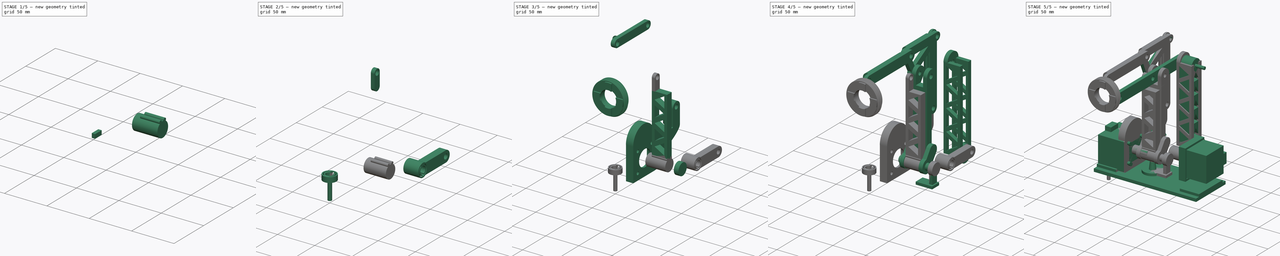
[diagram: build sequence overview — one tinted view per stage of 5, left to right]
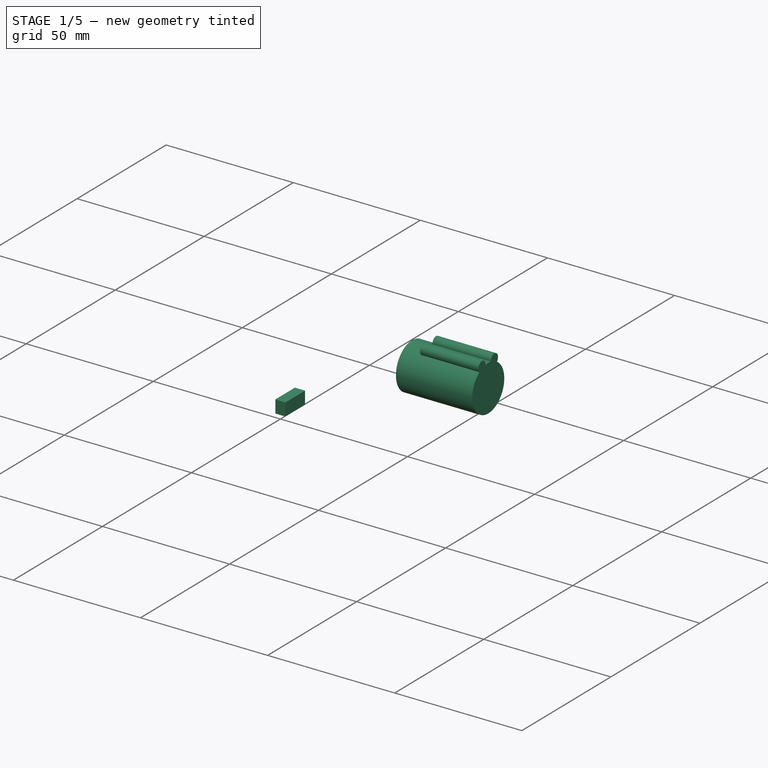
[diagram: stage 1 of 5 — iso view after this stage's code; geometry added in this stage tinted green]
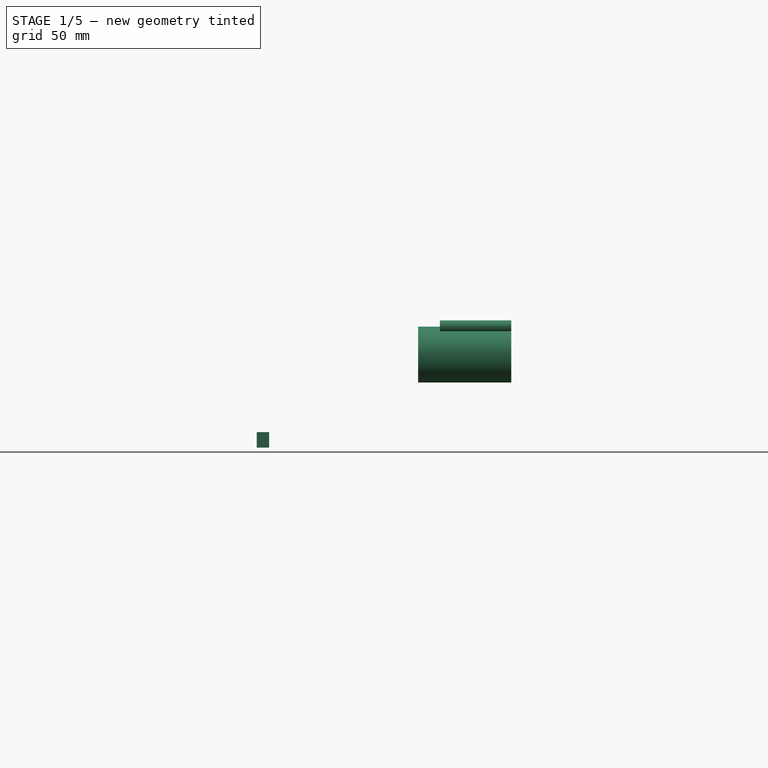
[diagram: stage 1 of 5 — front view after this stage's code; geometry added in this stage tinted green]
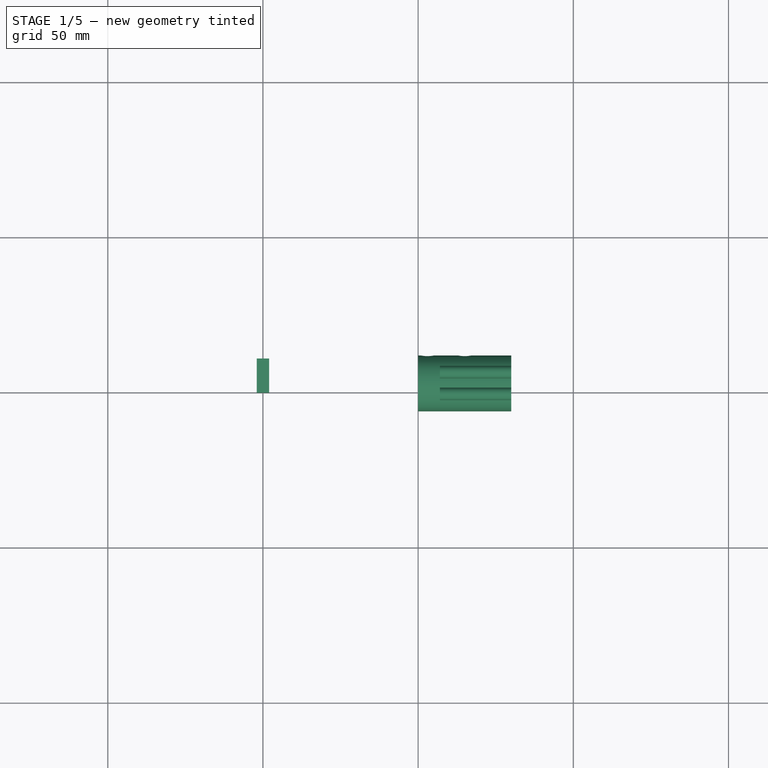
[diagram: stage 1 of 5 — top view after this stage's code; geometry added in this stage tinted green]
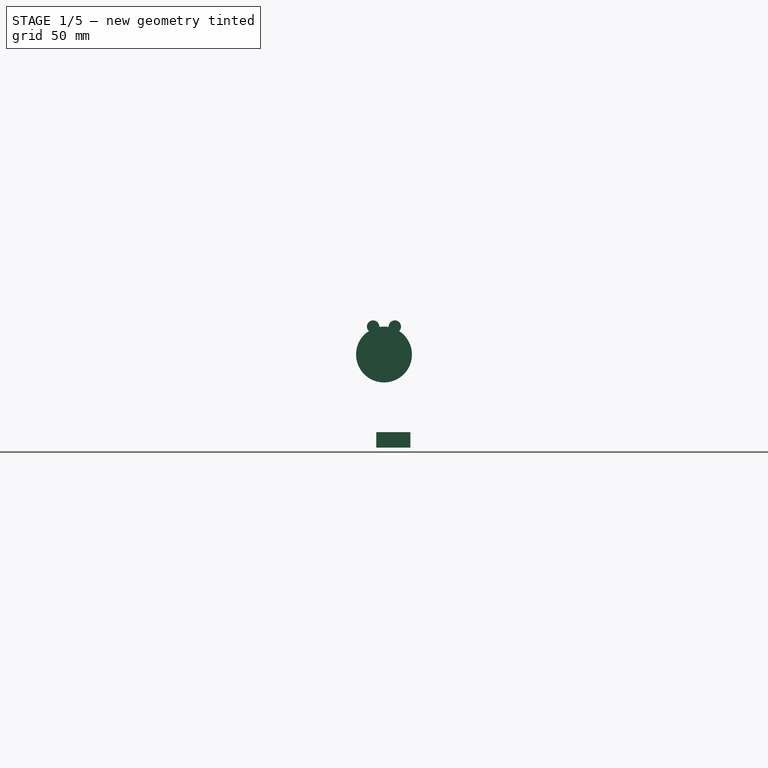
[diagram: stage 1 of 5 — right view after this stage's code; geometry added in this stage tinted green]
FCSTD DOCUMENT  (FreeCAD 0.19R24291 (Git))
Label: my_arm
License: All rights reserved
LicenseURL: http://en.wikipedia.org/wiki/All_rights_reserved
objects: Part::Extrusion×79, Part::MultiFuse×58, Sketcher::SketchObject×47, Part::Cut×38, Part::Feature×32, Part::Cylinder×31, Part::Box×24, App::Link×23, PartDesign::FeatureBase×9, PartDesign::Pad×5, PartDesign::Body×4, Part::Fillet×3, PartDesign::Fillet×2, Part::Cone×1, Part::Compound2×1
note: 340 computed .brp shape members not serialized (recipe doc carries the construction recipe); baked Part::Feature solids carry a one-line shape summary decoded from their .brp

FEATURE [Part::Feature] Face
  shape: bbox 15.96 x 13.57 x 2e-07 mm, 1 faces, 0 solids (baked)
FEATURE [Part::Feature] Face001
  shape: bbox 21.96 x 19.88 x 2e-07 mm, 1 faces, 0 solids (baked)
FEATURE [Part::Feature] Face002
  shape: bbox 25.74 x 23.3 x 2e-07 mm, 1 faces, 0 solids (baked)
FEATURE [Part::Feature] Face003
  shape: bbox 30.39 x 27.95 x 2e-07 mm, 1 faces, 0 solids (baked)
FEATURE [Part::Feature] Face004
  shape: bbox 4.4 x 12.1 x 2e-07 mm, 1 faces, 0 solids (baked)
FEATURE [Part::Extrusion] Extrude029  label="Extrude"
  Base = -> Face
  Dir = (0,0,1)
  DirMode = 0
  FaceMakerClass = Part::FaceMakerBullseye
  LengthFwd = 5
  LengthRev = 0
  Solid = false
  Symmetric = false
FEATURE [Part::Extrusion] Extrude030
  Base = -> Face001
  Dir = (0,0,1)
  DirMode = 0
  FaceMakerClass = Part::FaceMakerBullseye
  LengthFwd = 5
  LengthRev = 0
  Solid = false
  Symmetric = false
FEATURE [Part::Extrusion] Extrude031  label="Extrude002"
  Base = -> Face002
  Dir = (0,0,1)
  DirMode = 0
  FaceMakerClass = Part::FaceMakerBullseye
  LengthFwd = 5
  LengthRev = 0
  Solid = false
  Symmetric = false
FEATURE [Part::Extrusion] Extrude032  label="Extrude003"
  Base = -> Face004
  Dir = (0,0,1)
  DirMode = 0
  FaceMakerClass = Part::FaceMakerBullseye
  LengthFwd = 5
  LengthRev = 0
  Solid = false
  Symmetric = false
FEATURE [Part::Extrusion] Extrude033  label="Extrude004"
  Base = -> Face003
  Dir = (0,0,1)
  DirMode = 0
  FaceMakerClass = Part::FaceMakerBullseye
  LengthFwd = 5
  LengthRev = 0
  Solid = false
  Symmetric = false
FEATURE [Part::Cut] Cut016
  Base = -> Extrude030
  Tool = -> Extrude029
FEATURE [Part::Cut] Cut017
  Base = -> Cut016
  Tool = -> Extrude032
FEATURE [Part::Cut] Cut018
  Base = -> Extrude033
  Tool = -> Extrude031
FEATURE [Sketcher::SketchObject] Sketch031  label="Sketch001"
  FullyConstrained = false
  sketch-geometry (4):
    g0: ArcOfCircle CenterX=3e-16 CenterY=0 CenterZ=0 NormalX=0 NormalY=0 NormalZ=1 AngleXU=0 Radius=8.30611 StartAngle=4.22441 EndAngle=5.20037
    g1: ArcOfCircle CenterX=3e-16 CenterY=0 CenterZ=0 NormalX=0 NormalY=0 NormalZ=1 AngleXU=0 Radius=5.37276 StartAngle=4.1609 EndAngle=5.26388
    g2: LineSegment StartX=-2.81509 StartY=-4.57622 StartZ=0 EndX=-3.89424 EndY=-7.33664 EndZ=0
    g3: LineSegment StartX=3.89424 StartY=-7.33664 StartZ=0 EndX=2.81509 EndY=-4.57622 EndZ=0
  constraints (8):
    c: Coincident(g0,g-1)
    c: Symmetric(g0,g0,g-2)
    c: Coincident(g1,g0)
    c: Symmetric(g1,g1,g-2)
    c: Coincident(g2,g1)
    c: Coincident(g2,g0)
    c: Coincident(g3,g0)
    c: Coincident(g3,g1)
FEATURE [Part::Extrusion] Extrude034  label="Extrude005"
  Base = -> Sketch031
  Dir = (0,0,1)
  DirMode = 0
  FaceMakerClass = Part::FaceMakerBullseye
  LengthFwd = 5
  LengthRev = 0
  Solid = true
  Symmetric = false
FEATURE [Part::MultiFuse] Fusion033  label="Fusion"
  Shapes = -> [Cut018,Extrude034]
FEATURE [Part::MultiFuse] Fusion034  label="Fusion001"
  Shapes = -> [Cut018,Extrude034,Fusion033,Cut017]
FEATURE [Part::Extrusion] Extrude035  label="Extrude006"
  Base = -> Face003
  Dir = (0,0,1)
  DirMode = 0
  FaceMakerClass = Part::FaceMakerBullseye
  LengthFwd = 1
  LengthRev = 0
  Solid = false
  Symmetric = false
FEATURE [Part::MultiFuse] Fusion035  label="Fusion002"
  Shapes = -> [Extrude035,Fusion034]
FEATURE [Part::Feature] Face005
  shape: bbox 4.4 x 12.1 x 2e-07 mm, 1 faces, 0 solids (baked)
FEATURE [Part::Feature] Face006
  shape: bbox 21.96 x 19.88 x 2e-07 mm, 1 faces, 0 solids (baked)
FEATURE [Sketcher::SketchObject] Sketch035  label="Sketch006"
  FullyConstrained = false
  sketch-geometry (4):
    g0: ArcOfCircle CenterX=3e-16 CenterY=0 CenterZ=0 NormalX=0 NormalY=0 NormalZ=1 AngleXU=0 Radius=8.30611 StartAngle=4.22441 EndAngle=5.20037
    g1: ArcOfCircle CenterX=3e-16 CenterY=0 CenterZ=0 NormalX=0 NormalY=0 NormalZ=1 AngleXU=0 Radius=5.37276 StartAngle=4.1609 EndAngle=5.26388
    g2: LineSegment StartX=-2.81509 StartY=-4.57622 StartZ=0 EndX=-3.89424 EndY=-7.33664 EndZ=0
    g3: LineSegment StartX=3.89424 StartY=-7.33664 StartZ=0 EndX=2.81509 EndY=-4.57622 EndZ=0
  constraints (8):
    c: Coincident(g0,g-1)
    c: Symmetric(g0,g0,g-2)
    c: Coincident(g1,g0)
    c: Symmetric(g1,g1,g-2)
    c: Coincident(g2,g1)
    c: Coincident(g2,g0)
    c: Coincident(g3,g0)
    c: Coincident(g3,g1)
FEATURE [Part::Extrusion] Extrude041  label="Extrude012"
  Base = -> Face006
  Dir = (0,0,1)
  DirMode = 0
  FaceMakerClass = Part::FaceMakerBullseye
  LengthFwd = 5
  LengthRev = 0
  Solid = false
  Symmetric = false
FEATURE [Part::Feature] Face007
  shape: bbox 25.74 x 23.3 x 2e-07 mm, 1 faces, 0 solids (baked)
FEATURE [Part::Extrusion] Extrude038  label="Extrude009"
  Base = -> Face007
  Dir = (0,0,1)
  DirMode = 0
  FaceMakerClass = Part::FaceMakerBullseye
  LengthFwd = 5
  LengthRev = 0
  Solid = false
  Symmetric = false
FEATURE [Part::Extrusion] Extrude042  label="Extrude013"
  Base = -> Face005
  Dir = (0,0,1)
  DirMode = 0
  FaceMakerClass = Part::FaceMakerBullseye
  LengthFwd = 5
  LengthRev = 0
  Solid = false
  Symmetric = false
FEATURE [Part::Extrusion] Extrude043  label="Extrude014"
  Base = -> Sketch035
  Dir = (0,0,1)
  DirMode = 0
  FaceMakerClass = Part::FaceMakerBullseye
  LengthFwd = 5
  LengthRev = 0
  Solid = true
  Symmetric = false
FEATURE [Part::Feature] Face008
  shape: bbox 15.96 x 13.57 x 2e-07 mm, 1 faces, 0 solids (baked)
FEATURE [Part::Extrusion] Extrude039  label="Extrude010"
  Base = -> Face008
  Dir = (0,0,1)
  DirMode = 0
  FaceMakerClass = Part::FaceMakerBullseye
  LengthFwd = 5
  LengthRev = 0
  Solid = false
  Symmetric = false
FEATURE [Part::Feature] Face009
  shape: bbox 30.39 x 27.95 x 2e-07 mm, 1 faces, 0 solids (baked)
FEATURE [Part::Extrusion] Extrude044  label="Extrude015"
  Base = -> Face009
  Dir = (0,0,1)
  DirMode = 0
  FaceMakerClass = Part::FaceMakerBullseye
  LengthFwd = 5
  LengthRev = 0
  Solid = false
  Symmetric = false
FEATURE [Part::Cut] Cut021  label="Cut005"
  Base = -> Extrude044
  Tool = -> Extrude038
FEATURE [Part::MultiFuse] Fusion040  label="Fusion007"
  Shapes = -> [Cut021,Extrude043]
FEATURE [Part::Extrusion] Extrude045  label="Extrude016"
  Base = -> Face009
  Dir = (0,0,1)
  DirMode = 0
  FaceMakerClass = Part::FaceMakerBullseye
  LengthFwd = 1
  LengthRev = 0
  Solid = false
  Symmetric = false
FEATURE [Part::Cut] Cut022  label="Cut006"
  Base = -> Extrude041
  Tool = -> Extrude039
FEATURE [Part::Cut] Cut023  label="Cut007"
  Base = -> Cut022
  Tool = -> Extrude042
FEATURE [Part::MultiFuse] Fusion037  label="Fusion004"
  Shapes = -> [Cut021,Extrude043,Fusion040,Cut023]
FEATURE [Part::MultiFuse] Fusion038  label="Fusion005"
  Shapes = -> [Extrude045,Fusion037]
FEATURE [PartDesign::FeatureBase] BaseFeature003
  BaseFeature = -> Fusion037
FEATURE [PartDesign::Pad] Pad001
  BaseFeature = -> BaseFeature003
  Direction = (1,1,1)
  Length = 2
  Length2 = 100
  Profile = -> BaseFeature003 [Face14,Face19,Face16,Face21,Face20]
  Type = 0
FEATURE [Sketcher::SketchObject] Sketch034  label="Sketch005"
  ExternalGeometry = -> [Pad001]
  FullyConstrained = true
  Placement = pos=(0,0,0) rot=(1,0,0;1.5708rad)
  sketch-geometry (1):
    g0: Circle CenterX=0 CenterY=4 CenterZ=0 NormalX=0 NormalY=0 NormalZ=1 AngleXU=0 Radius=2
  constraints (3):
    c: PointOnObject(g0,g-2)
    c: Radius(g0) = 2
    c: Distance(g0,g-3) = 3
FEATURE [Part::MultiFuse] Fusion039  label="Fusion006"
  Shapes = -> [Pad001,Fusion038]
FEATURE [Part::Extrusion] Extrude040  label="Extrude011"
  Base = -> Sketch034
  Dir = (0,-1,3e-16)
  DirMode = 2
  FaceMakerClass = Part::FaceMakerBullseye
  LengthFwd = -14
  LengthRev = 0
  Solid = true
  Symmetric = false
FEATURE [Part::Cut] Cut020  label="Cut004"
  Base = -> Fusion039
  Placement = pos=(77,2.5,30) rot=(0,-1,0;1.5708rad)
  Tool = -> Extrude040
FEATURE [PartDesign::FeatureBase] BaseFeature002
  BaseFeature = -> Cut020
  Placement = pos=(0,0,-12) rot=(0,1,0;0rad)
FEATURE [Part::Feature] Face010
  shape: bbox 30.39 x 27.95 x 2e-07 mm, 1 faces, 0 solids (baked)
FEATURE [Part::Extrusion] Extrude046  label="Extrude018"
  Base = -> Face010
  Dir = (0,0,1)
  DirMode = 0
  FaceMakerClass = Part::FaceMakerBullseye
  LengthFwd = 6
  LengthRev = 0
  Solid = false
  Symmetric = false
FEATURE [Sketcher::SketchObject] Sketch036  label="Sketch007"
  FullyConstrained = false
  MapMode = 45
  Placement = pos=(-2.57849e-06,0.705405,1) rot=(0,0,1;1.57078rad)
  sketch-geometry (1):
    g0: Circle CenterX=-0.452214 CenterY=0 CenterZ=0 NormalX=0 NormalY=0 NormalZ=1 AngleXU=0 Radius=2.55
  constraints (2):
    c: PointOnObject(g0,g-1)
    c: Radius(g0) = 2.55
FEATURE [Part::Feature] Face011
  shape: bbox 19.84 x 19.63 x 2e-07 mm, 1 faces, 0 solids (baked)
FEATURE [Part::Extrusion] Extrude048  label="Extrude020"
  Base = -> Face011
  Dir = (0,0,1)
  DirMode = 0
  FaceMakerClass = Part::FaceMakerBullseye
  LengthFwd = -18
  LengthRev = 0
  Solid = false
  Symmetric = false
FEATURE [Part::Feature] Face012
  shape: bbox 30.39 x 27.95 x 2e-07 mm, 1 faces, 0 solids (baked)
FEATURE [Part::Extrusion] Extrude049  label="Extrude022"
  Base = -> Face012
  Dir = (0,0,1)
  DirMode = 0
  FaceMakerClass = Part::FaceMakerBullseye
  LengthFwd = -1
  LengthRev = 0
  Solid = false
  Symmetric = false
FEATURE [PartDesign::FeatureBase] BaseFeature
  BaseFeature = -> Fusion034
FEATURE [Sketcher::SketchObject] Sketch030
  FullyConstrained = false
  MapMode = 5
  Support = -> [XY_Plane]
  sketch-geometry (8):
    g0: Circle CenterX=0 CenterY=0 CenterZ=0 NormalX=0 NormalY=0 NormalZ=1 AngleXU=0 Radius=4.9
    g1: Circle CenterX=0 CenterY=0 CenterZ=0 NormalX=0 NormalY=0 NormalZ=1 AngleXU=0 Radius=6.4
    g2: Circle CenterX=0 CenterY=0 CenterZ=0 NormalX=0 NormalY=0 NormalZ=1 AngleXU=0 Radius=7.5
    g3: Circle CenterX=0 CenterY=0 CenterZ=0 NormalX=0 NormalY=0 NormalZ=1 AngleXU=0 Radius=9
    g4: LineSegment StartX=-2 StartY=0 StartZ=0 EndX=2 EndY=0 EndZ=0
    g5: LineSegment StartX=2 StartY=0 StartZ=0 EndX=2 EndY=10.9979 EndZ=0
    g6: LineSegment StartX=2 StartY=10.9979 StartZ=0 EndX=-2 EndY=10.9979 EndZ=0
    g7: LineSegment StartX=-2 StartY=10.9979 StartZ=0 EndX=-2 EndY=0 EndZ=0
  constraints (18):
    c: Coincident(g0,g-1)
    c: Coincident(g1,g0)
    c: Coincident(g2,g0)
    c: Coincident(g3,g0)
    c: Radius(g0) = 4.9
    c: Radius(g1) = 6.4
    c: Radius(g2) = 7.5
    c: Radius(g3) = 9
    c: Coincident(g4,g5)
    c: Coincident(g5,g6)
    c: Coincident(g6,g7)
    c: Coincident(g7,g4)
    c: Horizontal(g6)
    c: Vertical(g5)
    c: Vertical(g7)
    c: PointOnObject(g4,g-1)
    c: Symmetric(g4,g4,g-2)
    c: DistanceX(g6,g6) = 4
FEATURE [PartDesign::Pad] Pad
  BaseFeature = -> BaseFeature
  Direction = (1,1,1)
  Length = 2
  Length2 = 100
  Profile = -> BaseFeature [Face14,Face19,Face16,Face21,Face20]
  Type = 0
FEATURE [Sketcher::SketchObject] Sketch032
  ExternalGeometry = -> [Pad]
  FullyConstrained = true
  Placement = pos=(0,0,0) rot=(1,0,0;1.5708rad)
  sketch-geometry (1):
    g0: Circle CenterX=0 CenterY=4 CenterZ=0 NormalX=0 NormalY=0 NormalZ=1 AngleXU=0 Radius=2
  constraints (3):
    c: PointOnObject(g0,g-2)
    c: Radius(g0) = 2
    c: Distance(g0,g-3) = 3
FEATURE [Part::MultiFuse] Fusion036  label="Fusion003"
  Shapes = -> [Pad,Fusion035]
FEATURE [Part::Extrusion] Extrude036  label="Extrude007"
  Base = -> Sketch032
  Dir = (0,-1,2e-16)
  DirMode = 2
  FaceMakerClass = Part::FaceMakerBullseye
  LengthFwd = -14
  LengthRev = 0
  Solid = true
  Symmetric = false
FEATURE [Part::Cut] Cut019  label="Cut003"
  Base = -> Fusion036
  Tool = -> Extrude036
FEATURE [PartDesign::FeatureBase] BaseFeature001
  BaseFeature = -> Cut019
FEATURE [Part::MultiFuse] Fusion041  label="Fusion008"
  Shapes = -> [BaseFeature001,Extrude046]
FEATURE [Part::MultiFuse] Fusion009
  Refine = true
  Shapes = -> [Fusion041,BaseFeature002]
FEATURE [Part::MultiFuse] Fusion042  label="Fusion010"
  Refine = true
  Shapes = -> [Extrude049,Fusion009]
FEATURE [Part::Cut] Cut024
  Base = -> Fusion042
  Placement = pos=(57,2.5,30) rot=(0,-1,0;1.5708rad)
  Refine = true
  Tool = -> Extrude048
FEATURE [Part::Feature] Face022
  shape: bbox 4.4 x 12.1 x 2e-07 mm, 1 faces, 0 solids (baked)
FEATURE [Part::Extrusion] Extrude062
  Base = -> Face022
  Dir = (0,0,1)
  DirMode = 0
  FaceMakerClass = Part::FaceMakerBullseye
  LengthFwd = 5
  LengthRev = 0
  Solid = false
  Symmetric = false
FEATURE [Part::Cylinder] Cylinder031
  Angle = 360
  AttacherType = Attacher::AttachEngine3D
  Height = 23
  Placement = pos=(57,-1,39) rot=(0,1,0;1.5708rad)
  Radius = 2
FEATURE [Part::Cylinder] Cylinder032
  Angle = 360
  AttacherType = Attacher::AttachEngine3D
  Height = 23
  Placement = pos=(57,6,39) rot=(0,1,0;1.5708rad)
  Radius = 2
FEATURE [Part::Cylinder] Cylinder033
  Angle = 360
  AttacherType = Attacher::AttachEngine3D
  Height = 10
  Placement = pos=(70,2.5,30) rot=(0,1,0;1.5708rad)
  Radius = 9
FEATURE [Part::MultiFuse] Fusion060
  Refine = true
  Shapes = -> [Cut024,Cylinder033]
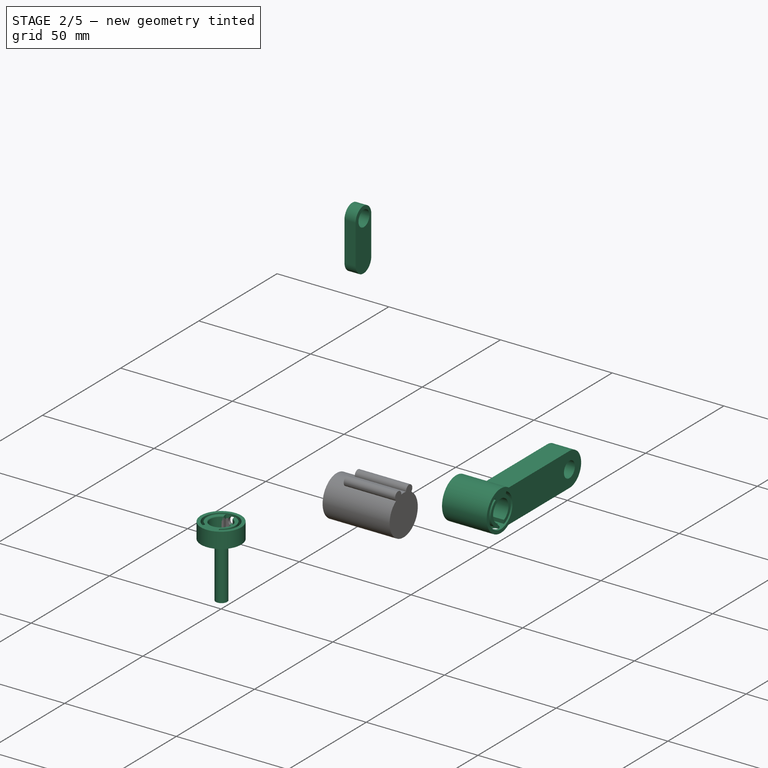
[diagram: stage 2 of 5 — iso view after this stage's code; geometry added in this stage tinted green]
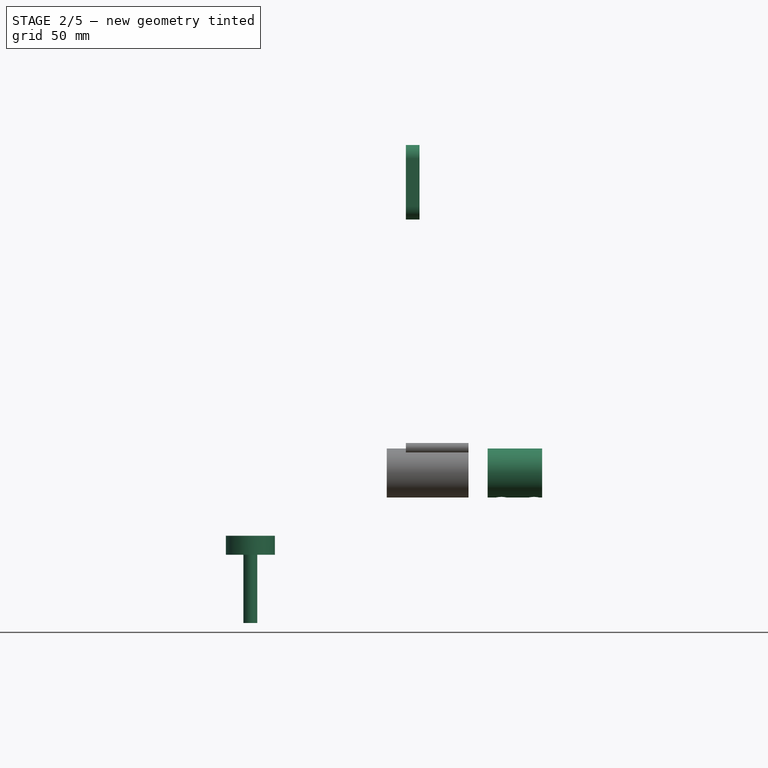
[diagram: stage 2 of 5 — front view after this stage's code; geometry added in this stage tinted green]
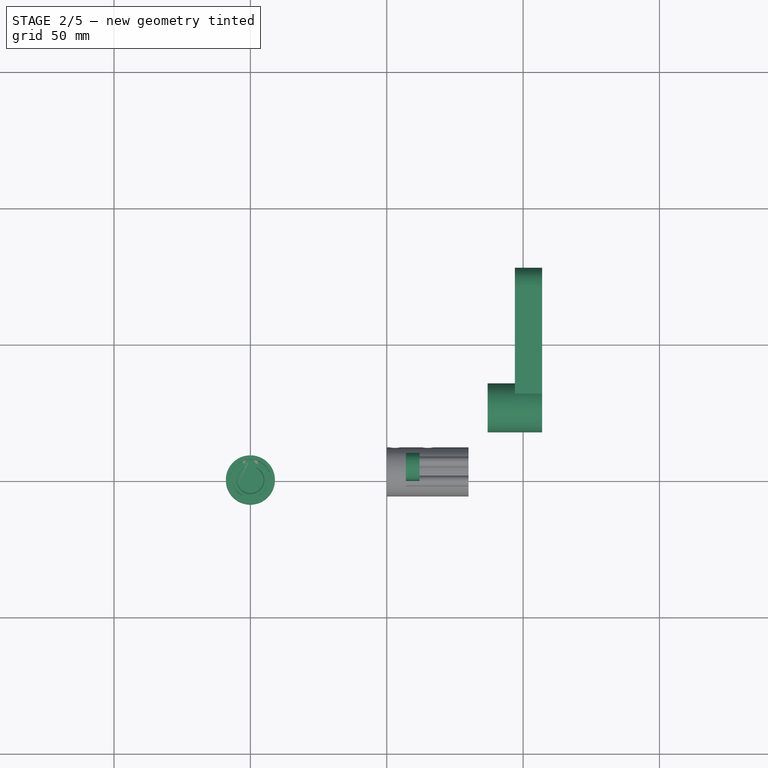
[diagram: stage 2 of 5 — top view after this stage's code; geometry added in this stage tinted green]
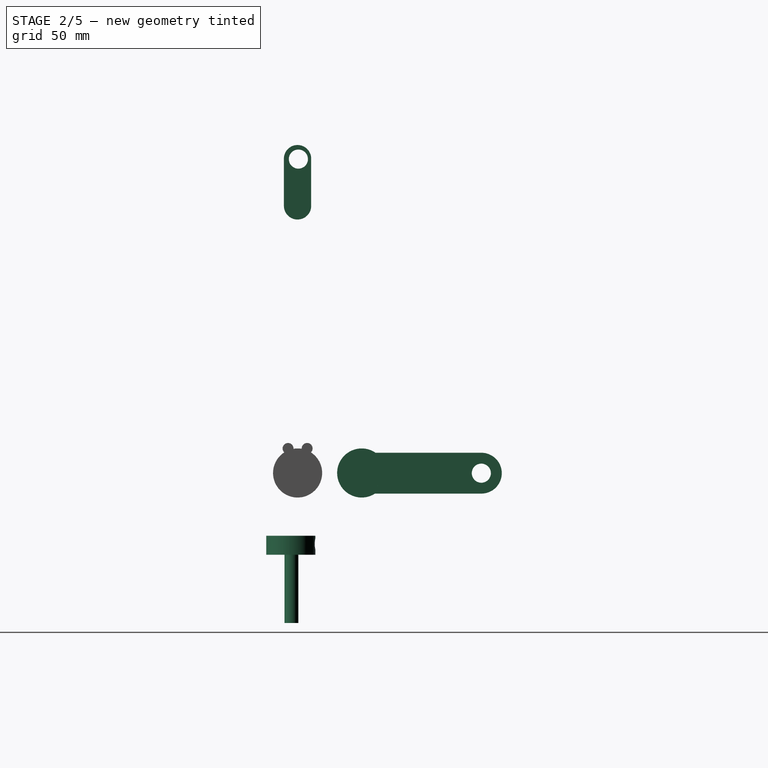
[diagram: stage 2 of 5 — right view after this stage's code; geometry added in this stage tinted green]
FEATURE [Part::Extrusion] Extrude006  label="Palito 1 codo"
  Base = -> Sketch007
  Dir = (-1,0,0)
  DirMode = 2
  FaceMakerClass = Part::FaceMakerBullseye
  LengthFwd = 10
  LengthRev = 0
  Placement = pos=(107,0,0) rot=(0,0,1;0rad)
  Solid = true
  Symmetric = false
FEATURE [Sketcher::SketchObject] Sketch039
  FullyConstrained = false
  Placement = pos=(0,0,0) rot=(0.57735,-0.57735,-0.57735;2.0944rad)
  sketch-geometry (5):
    g0: ArcOfCircle CenterX=-2.51171 CenterY=145.254 CenterZ=0 NormalX=0 NormalY=0 NormalZ=1 AngleXU=0 Radius=5 StartAngle=5e-16 EndAngle=3.14159
    g1: ArcOfCircle CenterX=-2.51171 CenterY=127.933 CenterZ=0 NormalX=0 NormalY=0 NormalZ=1 AngleXU=0 Radius=5 StartAngle=3.14159 EndAngle=6.28319
    g2: LineSegment StartX=-7.51171 StartY=145.254 StartZ=0 EndX=-7.51171 EndY=127.933 EndZ=0
    g3: LineSegment StartX=2.48829 StartY=145.254 StartZ=0 EndX=2.48829 EndY=127.933 EndZ=0
    g4: Circle CenterX=-2.82037 CenterY=145.089 CenterZ=0 NormalX=0 NormalY=0 NormalZ=1 AngleXU=0 Radius=3.5
  constraints (9):
    c: Tangent(g0,g3) = 1.5708
    c: Tangent(g0,g2) = -1.5708
    c: Tangent(g2,g1) = -1.5708
    c: Tangent(g3,g1) = 1.5708
    c: Vertical(g2)
    c: Equal(g0,g1)
    c: Radius(g4) = 3.5
    c: DistanceX(g1,g1) = 10
    c: Distance(g4,g0) = 0.35
FEATURE [Part::Extrusion] Extrude058  label="union centro_arriba"
  Base = -> Sketch039
  Dir = (-1,0,0)
  DirMode = 2
  FaceMakerClass = Part::FaceMakerBullseye
  LengthFwd = 5
  LengthRev = 0
  Placement = pos=(62,-0.03,0) rot=(0,0,1;0rad)
  Solid = true
  Symmetric = false
FEATURE [App::Link] Link022  label="union centro_arriba001"
  LinkPlacement = pos=(80,-0.03,0) rot=(0,0,1;0rad)
  LinkedObject = -> Extrude058
  Placement = pos=(80,-0.03,0) rot=(0,0,1;0rad)
FEATURE [Part::Feature] Face018
  shape: bbox 15.96 x 13.57 x 2e-07 mm, 1 faces, 0 solids (baked)
FEATURE [Part::Feature] Face019
  shape: bbox 21.96 x 19.88 x 2e-07 mm, 1 faces, 0 solids (baked)
FEATURE [Part::Feature] Face020
  shape: bbox 25.74 x 23.3 x 2e-07 mm, 1 faces, 0 solids (baked)
FEATURE [Part::Feature] Face021
  shape: bbox 30.39 x 27.95 x 2e-07 mm, 1 faces, 0 solids (baked)
FEATURE [Sketcher::SketchObject] Sketch041
  FullyConstrained = false
  sketch-geometry (4):
    g0: ArcOfCircle CenterX=3e-16 CenterY=0 CenterZ=0 NormalX=0 NormalY=0 NormalZ=1 AngleXU=0 Radius=8.30611 StartAngle=4.22441 EndAngle=5.20037
    g1: ArcOfCircle CenterX=3e-16 CenterY=0 CenterZ=0 NormalX=0 NormalY=0 NormalZ=1 AngleXU=0 Radius=5.37276 StartAngle=4.1609 EndAngle=5.26388
    g2: LineSegment StartX=-2.81509 StartY=-4.57622 StartZ=0 EndX=-3.89424 EndY=-7.33664 EndZ=0
    g3: LineSegment StartX=3.89424 StartY=-7.33664 StartZ=0 EndX=2.81509 EndY=-4.57622 EndZ=0
  constraints (8):
    c: Coincident(g0,g-1)
    c: Symmetric(g0,g0,g-2)
    c: Coincident(g1,g0)
    c: Symmetric(g1,g1,g-2)
    c: Coincident(g2,g1)
    c: Coincident(g2,g0)
    c: Coincident(g3,g0)
    c: Coincident(g3,g1)
FEATURE [Part::Feature] Face023
  shape: bbox 4.4 x 12.1 x 2e-07 mm, 1 faces, 0 solids (baked)
FEATURE [Part::Feature] Face024
  shape: bbox 21.96 x 19.88 x 2e-07 mm, 1 faces, 0 solids (baked)
FEATURE [Sketcher::SketchObject] Sketch045
  FullyConstrained = false
  sketch-geometry (4):
    g0: ArcOfCircle CenterX=3e-16 CenterY=0 CenterZ=0 NormalX=0 NormalY=0 NormalZ=1 AngleXU=0 Radius=8.30611 StartAngle=4.22441 EndAngle=5.20037
    g1: ArcOfCircle CenterX=3e-16 CenterY=0 CenterZ=0 NormalX=0 NormalY=0 NormalZ=1 AngleXU=0 Radius=5.37276 StartAngle=4.1609 EndAngle=5.26388
    g2: LineSegment StartX=-2.81509 StartY=-4.57622 StartZ=0 EndX=-3.89424 EndY=-7.33664 EndZ=0
    g3: LineSegment StartX=3.89424 StartY=-7.33664 StartZ=0 EndX=2.81509 EndY=-4.57622 EndZ=0
  constraints (8):
    c: Coincident(g0,g-1)
    c: Symmetric(g0,g0,g-2)
    c: Coincident(g1,g0)
    c: Symmetric(g1,g1,g-2)
    c: Coincident(g2,g1)
    c: Coincident(g2,g0)
    c: Coincident(g3,g0)
    c: Coincident(g3,g1)
FEATURE [Part::Extrusion] Extrude071
  Base = -> Face024
  Dir = (0,0,1)
  DirMode = 0
  FaceMakerClass = Part::FaceMakerBullseye
  LengthFwd = 5
  LengthRev = 0
  Solid = false
  Symmetric = false
FEATURE [Part::Feature] Face025
  shape: bbox 25.74 x 23.3 x 2e-07 mm, 1 faces, 0 solids (baked)
FEATURE [Part::Extrusion] Extrude068
  Base = -> Face025
  Dir = (0,0,1)
  DirMode = 0
  FaceMakerClass = Part::FaceMakerBullseye
  LengthFwd = 5
  LengthRev = 0
  Solid = false
  Symmetric = false
FEATURE [Part::Extrusion] Extrude072
  Base = -> Face023
  Dir = (0,0,1)
  DirMode = 0
  FaceMakerClass = Part::FaceMakerBullseye
  LengthFwd = 5
  LengthRev = 0
  Solid = false
  Symmetric = false
FEATURE [Part::Extrusion] Extrude073
  Base = -> Sketch045
  Dir = (0,0,1)
  DirMode = 0
  FaceMakerClass = Part::FaceMakerBullseye
  LengthFwd = 5
  LengthRev = 0
  Solid = true
  Symmetric = false
FEATURE [Part::Feature] Face026
  shape: bbox 15.96 x 13.57 x 2e-07 mm, 1 faces, 0 solids (baked)
FEATURE [Part::Extrusion] Extrude069
  Base = -> Face026
  Dir = (0,0,1)
  DirMode = 0
  FaceMakerClass = Part::FaceMakerBullseye
  LengthFwd = 5
  LengthRev = 0
  Solid = false
  Symmetric = false
FEATURE [Part::Feature] Face027
  shape: bbox 30.39 x 27.95 x 2e-07 mm, 1 faces, 0 solids (baked)
FEATURE [Part::Extrusion] Extrude074
  Base = -> Face027
  Dir = (0,0,1)
  DirMode = 0
  FaceMakerClass = Part::FaceMakerBullseye
  LengthFwd = 5
  LengthRev = 0
  Solid = false
  Symmetric = false
FEATURE [Part::Cut] Cut034
  Base = -> Extrude074
  Tool = -> Extrude068
FEATURE [Part::MultiFuse] Fusion055
  Shapes = -> [Cut034,Extrude073]
FEATURE [Part::Extrusion] Extrude075
  Base = -> Face027
  Dir = (0,0,1)
  DirMode = 0
  FaceMakerClass = Part::FaceMakerBullseye
  LengthFwd = 1
  LengthRev = 0
  Solid = false
  Symmetric = false
FEATURE [Part::Cut] Cut035
  Base = -> Extrude071
  Tool = -> Extrude069
FEATURE [Part::Cut] Cut036
  Base = -> Cut035
  Tool = -> Extrude072
FEATURE [Part::MultiFuse] Fusion052
  Shapes = -> [Cut034,Extrude073,Fusion055,Cut036]
FEATURE [Part::MultiFuse] Fusion053
  Shapes = -> [Extrude075,Fusion052]
FEATURE [PartDesign::FeatureBase] BaseFeature008
  BaseFeature = -> Fusion052
FEATURE [PartDesign::Pad] Pad004
  BaseFeature = -> BaseFeature008
  Direction = (1,1,1)
  Length = 2
  Length2 = 100
  Profile = -> BaseFeature008 [Face14,Face19,Face16,Face21,Face20]
  Type = 0
FEATURE [Sketcher::SketchObject] Sketch044
  ExternalGeometry = -> [Pad004]
  FullyConstrained = true
  Placement = pos=(0,0,0) rot=(1,0,0;1.5708rad)
  sketch-geometry (1):
    g0: Circle CenterX=0 CenterY=4 CenterZ=0 NormalX=0 NormalY=0 NormalZ=1 AngleXU=0 Radius=2
  constraints (3):
    c: PointOnObject(g0,g-2)
    c: Radius(g0) = 2
    c: Distance(g0,g-3) = 3
FEATURE [Part::MultiFuse] Fusion054
  Shapes = -> [Pad004,Fusion053]
FEATURE [Part::Extrusion] Extrude070
  Base = -> Sketch044
  Dir = (0,-1,3e-16)
  DirMode = 2
  FaceMakerClass = Part::FaceMakerBullseye
  LengthFwd = -14
  LengthRev = 0
  Solid = true
  Symmetric = false
FEATURE [Part::Cut] Cut033
  Base = -> Fusion054
  Tool = -> Extrude070
FEATURE [PartDesign::FeatureBase] BaseFeature007
  BaseFeature = -> Cut033
  Placement = pos=(0,0,-12) rot=(0,1,0;0rad)
FEATURE [Part::Feature] Face028
  shape: bbox 30.39 x 27.95 x 2e-07 mm, 1 faces, 0 solids (baked)
FEATURE [Part::Extrusion] Extrude076
  Base = -> Face028
  Dir = (0,0,1)
  DirMode = 0
  FaceMakerClass = Part::FaceMakerBullseye
  LengthFwd = 6
  LengthRev = 0
  Solid = false
  Symmetric = false
FEATURE [Sketcher::SketchObject] Sketch046
  FullyConstrained = false
  MapMode = 45
  Placement = pos=(-2.57849e-06,0.705405,1) rot=(0,0,1;1.57078rad)
  sketch-geometry (1):
    g0: Circle CenterX=-0.452214 CenterY=0 CenterZ=0 NormalX=0 NormalY=0 NormalZ=1 AngleXU=0 Radius=2.55
  constraints (2):
    c: PointOnObject(g0,g-1)
    c: Radius(g0) = 2.55
FEATURE [Part::Extrusion] Extrude077  label="Extrude019"
  Base = -> Sketch046
  Dir = (0,0,1)
  DirMode = 0
  FaceMakerClass = Part::FaceMakerBullseye
  LengthFwd = 26
  LengthRev = 0
  Reversed = true
  Solid = true
  Symmetric = false
FEATURE [Part::Feature] Face029
  shape: bbox 19.84 x 19.63 x 2e-07 mm, 1 faces, 0 solids (baked)
FEATURE [Part::Extrusion] Extrude078
  Base = -> Face029
  Dir = (0,0,1)
  DirMode = 0
  FaceMakerClass = Part::FaceMakerBullseye
  LengthFwd = -18
  LengthRev = 0
  Solid = false
  Symmetric = false
FEATURE [Part::Feature] Face030
  shape: bbox 30.39 x 27.95 x 2e-07 mm, 1 faces, 0 solids (baked)
FEATURE [Part::Extrusion] Extrude079
  Base = -> Face030
  Dir = (0,0,1)
  DirMode = 0
  FaceMakerClass = Part::FaceMakerBullseye
  LengthFwd = -1
  LengthRev = 0
  Solid = false
  Symmetric = false
FEATURE [Part::Extrusion] Extrude065
  Base = -> Face021
  Dir = (0,0,1)
  DirMode = 0
  FaceMakerClass = Part::FaceMakerBullseye
  LengthFwd = 1
  LengthRev = 0
  Solid = false
  Symmetric = false
FEATURE [Part::Extrusion] Extrude064
  Base = -> Sketch041
  Dir = (0,0,1)
  DirMode = 0
  FaceMakerClass = Part::FaceMakerBullseye
  LengthFwd = 5
  LengthRev = 0
  Solid = true
  Symmetric = false
FEATURE [Part::Extrusion] Extrude063
  Base = -> Face021
  Dir = (0,0,1)
  DirMode = 0
  FaceMakerClass = Part::FaceMakerBullseye
  LengthFwd = 5
  LengthRev = 0
  Solid = false
  Symmetric = false
FEATURE [Part::Extrusion] Extrude061
  Base = -> Face020
  Dir = (0,0,1)
  DirMode = 0
  FaceMakerClass = Part::FaceMakerBullseye
  LengthFwd = 5
  LengthRev = 0
  Solid = false
  Symmetric = false
FEATURE [Part::Cut] Cut031
  Base = -> Extrude063
  Tool = -> Extrude061
FEATURE [Part::MultiFuse] Fusion048
  Shapes = -> [Cut031,Extrude064]
FEATURE [Part::Extrusion] Extrude060
  Base = -> Face019
  Dir = (0,0,1)
  DirMode = 0
  FaceMakerClass = Part::FaceMakerBullseye
  LengthFwd = 5
  LengthRev = 0
  Solid = false
  Symmetric = false
FEATURE [Part::Extrusion] Extrude059
  Base = -> Face018
  Dir = (0,0,1)
  DirMode = 0
  FaceMakerClass = Part::FaceMakerBullseye
  LengthFwd = 5
  LengthRev = 0
  Solid = false
  Symmetric = false
FEATURE [Part::Cut] Cut029
  Base = -> Extrude060
  Tool = -> Extrude059
FEATURE [Part::Cut] Cut030
  Base = -> Cut029
  Tool = -> Extrude062
FEATURE [Sketcher::SketchObject] Sketch040
  FullyConstrained = false
  MapMode = 5
  Support = -> [XY_Plane002]
  sketch-geometry (8):
    g0: Circle CenterX=0 CenterY=0 CenterZ=0 NormalX=0 NormalY=0 NormalZ=1 AngleXU=0 Radius=4.9
    g1: Circle CenterX=0 CenterY=0 CenterZ=0 NormalX=0 NormalY=0 NormalZ=1 AngleXU=0 Radius=6.4
    g2: Circle CenterX=0 CenterY=0 CenterZ=0 NormalX=0 NormalY=0 NormalZ=1 AngleXU=0 Radius=7.5
    g3: Circle CenterX=0 CenterY=0 CenterZ=0 NormalX=0 NormalY=0 NormalZ=1 AngleXU=0 Radius=9
    g4: LineSegment StartX=-2 StartY=0 StartZ=0 EndX=2 EndY=0 EndZ=0
    g5: LineSegment StartX=2 StartY=0 StartZ=0 EndX=2 EndY=10.9979 EndZ=0
    g6: LineSegment StartX=2 StartY=10.9979 StartZ=0 EndX=-2 EndY=10.9979 EndZ=0
    g7: LineSegment StartX=-2 StartY=10.9979 StartZ=0 EndX=-2 EndY=0 EndZ=0
  constraints (18):
    c: Coincident(g0,g-1)
    c: Coincident(g1,g0)
    c: Coincident(g2,g0)
    c: Coincident(g3,g0)
    c: Radius(g0) = 4.9
    c: Radius(g1) = 6.4
    c: Radius(g2) = 7.5
    c: Radius(g3) = 9
    c: Coincident(g4,g5)
    c: Coincident(g5,g6)
    c: Coincident(g6,g7)
    c: Coincident(g7,g4)
    c: Horizontal(g6)
    c: Vertical(g5)
    c: Vertical(g7)
    c: PointOnObject(g4,g-1)
    c: Symmetric(g4,g4,g-2)
    c: DistanceX(g6,g6) = 4
FEATURE [Part::MultiFuse] Fusion049
  Shapes = -> [Cut031,Extrude064,Fusion048,Cut030]
FEATURE [PartDesign::FeatureBase] BaseFeature005
  BaseFeature = -> Fusion049
FEATURE [PartDesign::Pad] Pad003
  BaseFeature = -> BaseFeature005
  Direction = (1,1,1)
  Length = 2
  Length2 = 100
  Profile = -> BaseFeature005 [Face14,Face19,Face16,Face21,Face20]
  Type = 0
FEATURE [PartDesign::Body] Body002
  BaseFeature = -> Fusion049
  Group = -> [BaseFeature005,Sketch040,Pad003]
  Origin = -> Origin002
  Tip = -> Pad003
FEATURE [Part::MultiFuse] Fusion050
  Shapes = -> [Extrude065,Fusion049]
FEATURE [Sketcher::SketchObject] Sketch042
  ExternalGeometry = -> [Pad003]
  FullyConstrained = true
  Placement = pos=(0,0,0) rot=(1,0,0;1.5708rad)
  sketch-geometry (1):
    g0: Circle CenterX=0 CenterY=4 CenterZ=0 NormalX=0 NormalY=0 NormalZ=1 AngleXU=0 Radius=2
  constraints (3):
    c: PointOnObject(g0,g-2)
    c: Radius(g0) = 2
    c: Distance(g0,g-3) = 3
FEATURE [Part::Extrusion] Extrude066
  Base = -> Sketch042
  Dir = (0,-1,2e-16)
  DirMode = 2
  FaceMakerClass = Part::FaceMakerBullseye
  LengthFwd = -14
  LengthRev = 0
  Solid = true
  Symmetric = false
FEATURE [Part::MultiFuse] Fusion051
  Shapes = -> [Pad003,Fusion050]
FEATURE [Part::Cut] Cut032
  Base = -> Fusion051
  Tool = -> Extrude066
FEATURE [PartDesign::FeatureBase] BaseFeature006
  BaseFeature = -> Cut032
FEATURE [Sketcher::SketchObject] Sketch043
  FullyConstrained = false
  MapMode = 45
  Placement = pos=(-2.57849e-06,0.705405,1) rot=(0,0,1;1.57078rad)
  Support = -> [BaseFeature006]
  sketch-geometry (1):
    g0: Circle CenterX=0 CenterY=-0.117417 CenterZ=0 NormalX=0 NormalY=0 NormalZ=1 AngleXU=0 Radius=5.8
  constraints (2):
    c: PointOnObject(g0,g-2)
    c: Radius(g0) = 5.8
FEATURE [Part::Extrusion] Extrude067
  Base = -> Sketch043
  Dir = (0,0,1)
  DirMode = 2
  FaceMakerClass = Part::FaceMakerBullseye
  LengthFwd = 1
  LengthRev = 0
  Solid = true
  Symmetric = false
FEATURE [Part::MultiFuse] Fusion056
  Shapes = -> [BaseFeature006,Extrude076]
FEATURE [Part::MultiFuse] Fusion057
  Refine = true
  Shapes = -> [Fusion056,BaseFeature007]
FEATURE [Part::MultiFuse] Fusion058
  Refine = true
  Shapes = -> [Extrude079,Fusion057]
FEATURE [Part::Cut] Cut037
  Base = -> Fusion058
  Placement = pos=(100,26,30) rot=(0.57735,-0.57735,0.57735;4.18879rad)
  Refine = true
  Tool = -> Extrude078
FEATURE [PartDesign::Fillet] Fillet004
  Base = -> BaseFeature006 [Edge103]
  BaseFeature = -> BaseFeature006
  Radius = 0.5
  SupportTransform = false
FEATURE [PartDesign::Body] Body003
  BaseFeature = -> Cut032
  Group = -> [BaseFeature006,Fillet004]
  Origin = -> Origin003
  Tip = -> Fillet004
FEATURE [Part::MultiFuse] Fusion059  label="Palito 1 v2"
  Refine = true
  Shapes = -> [Extrude006,Cut037]
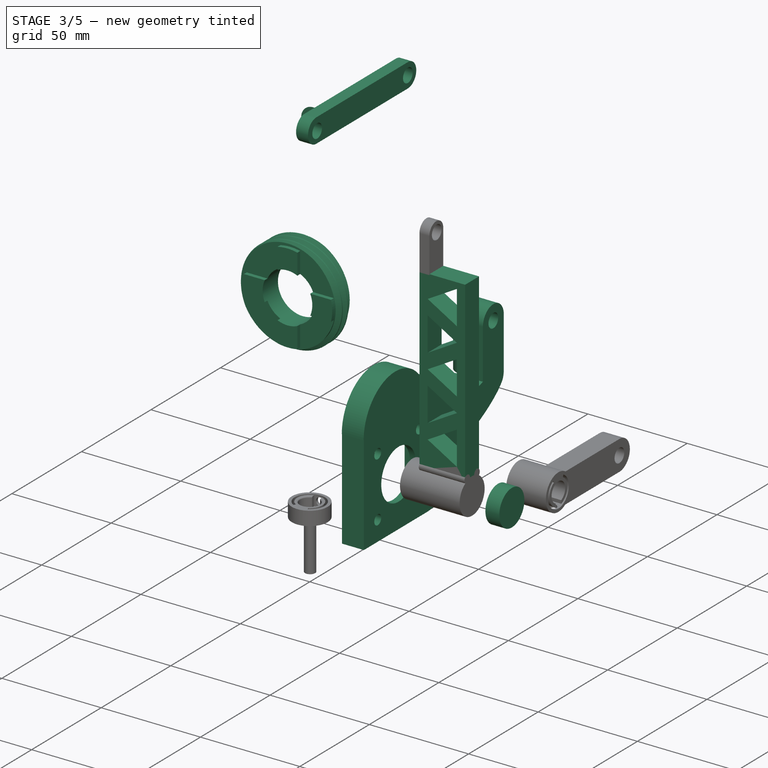
[diagram: stage 3 of 5 — iso view after this stage's code; geometry added in this stage tinted green]
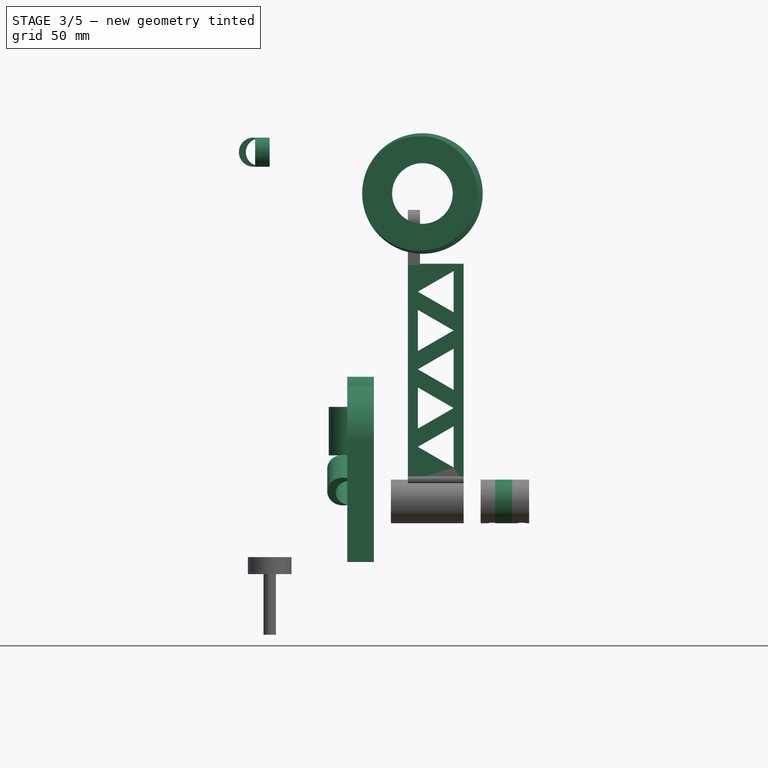
[diagram: stage 3 of 5 — front view after this stage's code; geometry added in this stage tinted green]
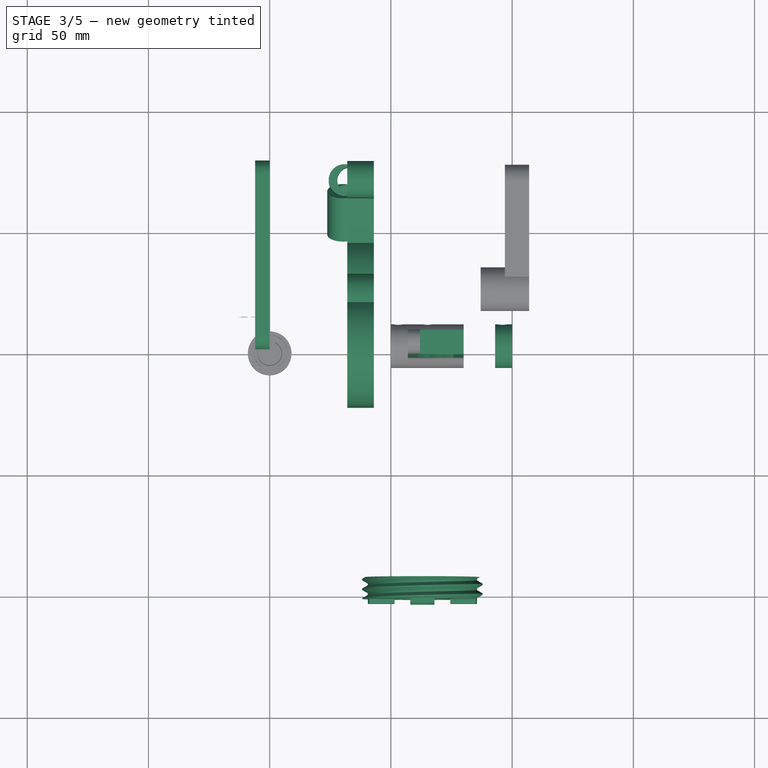
[diagram: stage 3 of 5 — top view after this stage's code; geometry added in this stage tinted green]
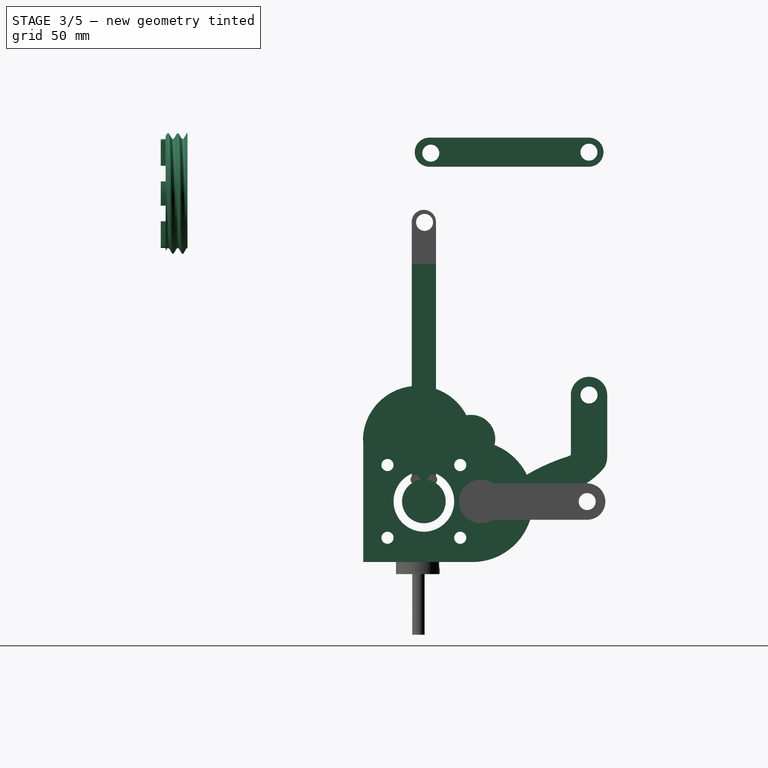
[diagram: stage 3 of 5 — right view after this stage's code; geometry added in this stage tinted green]
FEATURE [Part::Box] Box016  label="Carcasa Motor002"
  AttacherType = Attacher::AttachEngine3D
  Height = 3
  Length = 45
  Placement = pos=(0,0,40) rot=(0,0,1;0rad)
  Width = 50
FEATURE [Part::Box] Box017  label="lateral frente002"
  AttacherType = Attacher::AttachEngine3D
  Height = 8
  Length = 3
  Placement = pos=(0,0,32) rot=(0,0,1;0rad)
  Width = 50
FEATURE [Part::Box] Box018  label="lateral izq002"
  AttacherType = Attacher::AttachEngine3D
  Height = 8
  Length = 45
  Placement = pos=(0,0,32) rot=(0,0,1;0rad)
  Width = 3
FEATURE [App::Link] Link013  label="lateral der002"
  LinkPlacement = pos=(0,47,32) rot=(0,0,1;0rad)
  LinkedObject = -> Box018
  Placement = pos=(0,47,32) rot=(0,0,1;0rad)
FEATURE [Part::MultiFuse] Fusion010  label="Carcasa completa002"
  Refine = true
  Shapes = -> [Box016,Box018,Link013,Box017]
FEATURE [App::Link] Link012  label="tonillo motor012"
  LinkPlacement = pos=(10,40,38) rot=(0,0,1;0rad)
  LinkedObject = -> Cylinder007
  Placement = pos=(10,40,38) rot=(0,0,1;0rad)
FEATURE [Part::Cylinder] Cylinder007  label="tonillo motor013"
  Angle = 360
  AttacherType = Attacher::AttachEngine3D
  Height = 8
  Placement = pos=(10,10,38) rot=(0,0,1;0rad)
  Radius = 2.5
FEATURE [App::Link] Link014  label="tonillo motor014"
  LinkPlacement = pos=(40,40,38) rot=(0,0,1;0rad)
  LinkedObject = -> Cylinder007
  Placement = pos=(40,40,38) rot=(0,0,1;0rad)
FEATURE [App::Link] Link015  label="tonillo motor015"
  LinkPlacement = pos=(40,10,38) rot=(0,0,1;0rad)
  LinkedObject = -> Cylinder007
  Placement = pos=(40,10,38) rot=(0,0,1;0rad)
FEATURE [Part::Cut] Cut
  Base = -> Fusion010
  Refine = true
  Tool = -> Link012
FEATURE [Part::Cut] Cut001
  Base = -> Cut
  Refine = true
  Tool = -> Cylinder007
FEATURE [Part::Cut] Cut002
  Base = -> Cut001
  Refine = true
  Tool = -> Link014
FEATURE [Part::Cut] Cut003  label="Carcasa tornillos"
  Base = -> Cut002
  Placement = pos=(0,-22.5,5) rot=(0.57735,0.57735,0.57735;2.0944rad)
  Refine = true
  Tool = -> Link015
FEATURE [Part::Cylinder] Cylinder008  label="Hueco rotor"
  Angle = 360
  AttacherType = Attacher::AttachEngine3D
  Height = 25
  Placement = pos=(25,2.5,30) rot=(0,1,0;1.5708rad)
  Radius = 12.5
FEATURE [Part::Cut] Cut004  label="Carcasa completa003"
  Base = -> Cut003
  Refine = true
  Tool = -> Cylinder008
FEATURE [Part::Cylinder] Cylinder009  label="Cylinder"
  Angle = 360
  AttacherType = Attacher::AttachEngine3D
  Height = 11
  Placement = pos=(32,0,55) rot=(0,1,0;1.5708rad)
  Radius = 22.65
FEATURE [Part::Box] Box019  label="Cube"
  AttacherType = Attacher::AttachEngine3D
  Height = 46
  Length = 30
  Placement = pos=(21.4548,-39.1411,9) rot=(0,0,1;0rad)
  Width = 80
FEATURE [Part::Cut] Cut005  label="forma arriba"
  Base = -> Cylinder009
  Refine = true
  Tool = -> Box019
FEATURE [Part::Cylinder] Cylinder010
  Angle = 360
  AttacherType = Attacher::AttachEngine3D
  Height = 11
  Placement = pos=(32,0,55) rot=(0,1,0;1.5708rad)
  Radius = 25
FEATURE [Part::Box] Box020  label="Cube001"
  AttacherType = Attacher::AttachEngine3D
  Height = 46
  Length = 30
  Placement = pos=(21.4548,-39.1411,9) rot=(0,0,1;0rad)
  Width = 80
FEATURE [Part::Cut] Cut006  label="forma lateral"
  Base = -> Cylinder010
  Placement = pos=(0,-32.5,30) rot=(-1,0,0;1.5708rad)
  Refine = true
  Tool = -> Box020
FEATURE [Part::Cylinder] Cylinder011
  Angle = 360
  AttacherType = Attacher::AttachEngine3D
  Height = 11
  Placement = pos=(32,0,55) rot=(0,1,0;1.5708rad)
  Radius = 10
FEATURE [Part::Box] Box021  label="Cube002"
  AttacherType = Attacher::AttachEngine3D
  Height = 46
  Length = 30
  Placement = pos=(21.4548,-39.1411,9) rot=(0,0,1;0rad)
  Width = 80
FEATURE [Part::Cut] Cut007  label="forma lateral001"
  Base = -> Cylinder011
  Placement = pos=(0,-16.9437,16.8162) rot=(-1,0,0;0.785398rad)
  Refine = true
  Tool = -> Box021
FEATURE [Part::MultiFuse] Fusion011  label="Forma carcasa"
  Refine = true
  Shapes = -> [Cut007,Cut006,Cut005]
FEATURE [Sketcher::SketchObject] Sketch
  FullyConstrained = false
  Placement = pos=(0,0,0) rot=(0.57735,-0.57735,-0.57735;2.0944rad)
  sketch-geometry (10):
    g0: ArcOfCircle CenterX=-73.5124 CenterY=74.8985 CenterZ=0 NormalX=0 NormalY=0 NormalZ=1 AngleXU=0 Radius=7.5 StartAngle=2e-16 EndAngle=3.14159
    g1: LineSegment StartX=-81.0124 StartY=74.8985 StartZ=0 EndX=-81.0124 EndY=49.4839 EndZ=0
    g2: LineSegment StartX=-66.0124 StartY=74.8985 StartZ=0 EndX=-66.0124 EndY=49.8985 EndZ=0
    g3: Circle CenterX=-73.5124 CenterY=74.8985 CenterZ=0 NormalX=0 NormalY=0 NormalZ=1 AngleXU=0 Radius=3.5
    g4: ArcOfEllipse CenterX=-58.3052 CenterY=39.0253 CenterZ=0 NormalX=0 NormalY=0 NormalZ=1 MajorRadius=25 MinorRadius=7.5 AngleXU=2.70997 StartAngle=0.450101 EndAngle=5.1926
    g5: LineSegment StartX=-81.0124 StartY=49.4839 StartZ=0 EndX=-35.598 EndY=28.5667 EndZ=0
    g6: LineSegment StartX=-61.4428 StartY=32.2131 StartZ=0 EndX=-55.1676 EndY=45.8375 EndZ=0
    g7: GeomPoint X=-79.9665 Y=49.0022 Z=0
    g8: GeomPoint X=-36.6439 Y=29.0485 Z=0
    g9: ArcOfCircle CenterX=-71.7825 CenterY=49.4469 CenterZ=0 NormalX=0 NormalY=0 NormalZ=1 AngleXU=0 Radius=9.23 StartAngle=3.13759 EndAngle=3.58602
  constraints (17):
    c: Tangent(g0,g2) = 1.5708
    c: Tangent(g0,g1) = -1.5708
    c: Coincident(g1,g5) = -1.5708
    c: Vertical(g1)
    c: DistanceY(g2,g2) = 25
    c: DistanceX(g0,g0) = 15
    c: Coincident(g3,g0)
    c: Radius(g3) = 3.5
    c: InternalAlignment(g5-g8 -> g4) x4
    c: Distance(g6) = 15
    c: Distance(g5) = 50
    c: Coincident(g2,g4)
    c: Angle(g5,g-1) = 0.43162
    c: DistanceX(g1,g2) = 15
    c: Coincident(g9,g1)
    c: Coincident(g9,g4)
    c: Radius(g9) = 9.23
FEATURE [Part::Extrusion] Extrude  label="Palito 1"
  Base = -> Sketch
  Dir = (-1,0,0)
  DirMode = 2
  FaceMakerClass = Part::FaceMakerBullseye
  LengthFwd = 11
  LengthRev = 0
  Placement = pos=(43,-2.9,-1) rot=(0,0,1;0rad)
  Solid = true
  Symmetric = false
FEATURE [Part::MultiFuse] Fusion012  label="Brazo lateral izq"
  Refine = true
  Shapes = -> [Extrude,Fusion011]
FEATURE [Part::Extrusion] Extrude011  label="triangulo superior"
  Base = -> Sketch012
  Dir = (-1,0,0)
  DirMode = 2
  FaceMakerClass = Part::FaceMakerBullseye
  LengthFwd = 6
  LengthRev = 0
  Solid = true
  Symmetric = false
FEATURE [Part::MultiFuse] Fusion027  label="union motor izq"
  Refine = true
  Shapes = -> [Cut004,Fusion012]
FEATURE [Sketcher::SketchObject] Sketch025  label="sk_cables001"
  FullyConstrained = false
  Placement = pos=(0,0,0) rot=(1,0,0;1.5708rad)
  sketch-geometry (2):
    g0: ArcOfCircle CenterX=0 CenterY=0 CenterZ=0 NormalX=0 NormalY=0 NormalZ=1 AngleXU=0 Radius=6 StartAngle=4.34464 EndAngle=8.22174
    g1: ArcOfCircle CenterX=-2.47891 CenterY=8e-16 CenterZ=0 NormalX=0 NormalY=0 NormalZ=1 AngleXU=0 Radius=5.60806 StartAngle=4.7698 EndAngle=7.79657
  constraints (5):
    c: Coincident(g0,g-1)
    c: Radius(g0) = 6
    c: Symmetric(g0,g0,g-1)
    c: Coincident(g1,g0)
    c: Coincident(g1,g0)
FEATURE [Part::Extrusion] Extrude024  label="Cables triangulo hombro"
  Base = -> Sketch025
  Dir = (0,-1,2e-16)
  DirMode = 2
  FaceMakerClass = Part::FaceMakerBullseye
  LengthFwd = 48
  LengthRev = 0
  Placement = pos=(-6.7,60,174.05) rot=(0,1,0;3.14159rad)
  Solid = true
  Symmetric = false
FEATURE [Sketcher::SketchObject] Sketch027  label="sk_cables003"
  FullyConstrained = false
  Placement = pos=(0,0,0) rot=(1,0,0;1.5708rad)
  sketch-geometry (2):
    g0: ArcOfCircle CenterX=0 CenterY=0 CenterZ=0 NormalX=0 NormalY=0 NormalZ=1 AngleXU=0 Radius=6.5 StartAngle=4.07396 EndAngle=8.49241
    g1: ArcOfCircle CenterX=-2.45779 CenterY=0 CenterZ=0 NormalX=0 NormalY=0 NormalZ=1 AngleXU=0 Radius=5.40832 StartAngle=4.44753 EndAngle=8.11884
  constraints (5):
    c: Coincident(g0,g-1)
    c: Radius(g0) = 6.5
    c: Symmetric(g0,g0,g-1)
    c: Coincident(g1,g0)
    c: Coincident(g1,g0)
FEATURE [Part::Extrusion] Extrude026  label="palo1 cables 1"
  Base = -> Sketch027
  Dir = (0,-1,2e-16)
  DirMode = 2
  FaceMakerClass = Part::FaceMakerBullseye
  LengthFwd = 20
  LengthRev = 0
  Placement = pos=(30.8353,70.3789,49) rot=(0,0.707107,-0.707107;3.14159rad)
  Solid = true
  Symmetric = false
FEATURE [Sketcher::SketchObject] Sketch028  label="sk_cables004"
  FullyConstrained = false
  Placement = pos=(0,0,0) rot=(1,0,0;1.5708rad)
  sketch-geometry (2):
    g0: ArcOfCircle CenterX=0 CenterY=0 CenterZ=0 NormalX=0 NormalY=0 NormalZ=1 AngleXU=0 Radius=6.5 StartAngle=4.07396 EndAngle=8.49241
    g1: ArcOfCircle CenterX=-2.45779 CenterY=0 CenterZ=0 NormalX=0 NormalY=0 NormalZ=1 AngleXU=0 Radius=5.40832 StartAngle=4.44753 EndAngle=8.11884
  constraints (5):
    c: Coincident(g0,g-1)
    c: Radius(g0) = 6.5
    c: Symmetric(g0,g0,g-1)
    c: Coincident(g1,g0)
    c: Coincident(g1,g0)
FEATURE [Part::Extrusion] Extrude027  label="palo1 cables 2"
  Base = -> Sketch028
  Dir = (0,-1,2e-16)
  DirMode = 2
  FaceMakerClass = Part::FaceMakerBullseye
  LengthFwd = 20
  LengthRev = 0
  Placement = pos=(30.24,66.17,43.48) rot=(-0.031833,0.969804,0.241799;3.39557rad)
  Solid = true
  Symmetric = false
FEATURE [Part::MultiFuse] Fusion032  label="Palo 1 hombro"
  Refine = true
  Shapes = -> [Fusion027,Extrude027,Extrude026]
FEATURE [Part::Feature] Solid002
  Placement = pos=(-5,0,0) rot=(0,0,1;0rad)
  shape: bbox 51.46 x 51.46 x 12.32 mm, 28 faces (baked)
FEATURE [Part::Compound2] Compound  label="no me convence v3"
  Links = -> [Solid002]
  Placement = pos=(-82,-105,157) rot=(-1,0,0;4.71239rad)
FEATURE [Sketcher::SketchObject] Sketch029
  FullyConstrained = false
  Placement = pos=(0,0,0) rot=(1,0,0;1.5708rad)
  sketch-geometry (19):
    g0: LineSegment StartX=56.5408 StartY=133.111 StartZ=0 EndX=56.5408 EndY=43.1108 EndZ=0
    g1: LineSegment StartX=79.5408 StartY=133.111 StartZ=0 EndX=79.5408 EndY=43.1108 EndZ=0
    g2: LineSegment StartX=56.5408 StartY=43.1108 StartZ=0 EndX=79.5408 EndY=43.1108 EndZ=0
    g3: LineSegment StartX=56.5408 StartY=133.111 StartZ=0 EndX=79.5408 EndY=133.111 EndZ=0
    g4: LineSegment StartX=60.6808 StartY=57.6108 StartZ=0 EndX=75.4033 EndY=66.1108 EndZ=0
    g5: LineSegment StartX=60.6808 StartY=57.6108 StartZ=0 EndX=75.4033 EndY=49.1108 EndZ=0
    g6: LineSegment StartX=75.4033 StartY=66.1108 StartZ=0 EndX=75.4033 EndY=49.1108 EndZ=0
    g7: LineSegment StartX=60.6784 StartY=65.1108 StartZ=0 EndX=60.6784 EndY=82.1108 EndZ=0
    g8: LineSegment StartX=60.6784 StartY=65.1108 StartZ=0 EndX=75.4008 EndY=73.6108 EndZ=0
    g9: LineSegment StartX=60.6784 StartY=82.1108 StartZ=0 EndX=75.4008 EndY=73.6108 EndZ=0
    g10: LineSegment StartX=60.6808 StartY=89.6108 StartZ=0 EndX=75.4033 EndY=98.1108 EndZ=0
    g11: LineSegment StartX=60.6808 StartY=89.6108 StartZ=0 EndX=75.4033 EndY=81.1108 EndZ=0
    g12: LineSegment StartX=75.4033 StartY=98.1108 StartZ=0 EndX=75.4033 EndY=81.1108 EndZ=0
    g13: LineSegment StartX=60.6784 StartY=97.1108 StartZ=0 EndX=60.6784 EndY=114.111 EndZ=0
    g14: LineSegment StartX=60.6784 StartY=97.1108 StartZ=0 EndX=75.4008 EndY=105.611 EndZ=0
    g15: LineSegment StartX=60.6784 StartY=114.111 StartZ=0 EndX=75.4008 EndY=105.611 EndZ=0
    g16: LineSegment StartX=60.6808 StartY=121.611 StartZ=0 EndX=75.4033 EndY=130.111 EndZ=0
    g17: LineSegment StartX=75.4033 StartY=130.111 StartZ=0 EndX=75.4033 EndY=113.111 EndZ=0
    g18: LineSegment StartX=60.6808 StartY=121.611 StartZ=0 EndX=75.4033 EndY=113.111 EndZ=0
  constraints (55):
    c: Vertical(g0)
    c: Vertical(g1)
    c: Coincident(g2,g0)
    c: Coincident(g2,g1)
    c: Horizontal(g2)
    c: Coincident(g3,g0)
    c: Coincident(g3,g1)
    c: Horizontal(g3)
    c: DistanceX(g3,g3) = 23
    c: DistanceY(g1,g1) = 90
    c: Coincident(g5,g4)
    c: Coincident(g6,g4)
    c: Coincident(g6,g5)
    c: Vertical(g6)
    c: Angle(g5,g4) = 1.0472
    c: Angle(g4,g6) = 1.0472
    c: DistanceY(g6,g6) = 17
    c: Distance(g4,g0) = 4.14
    c: Coincident(g8,g7)
    c: Coincident(g9,g7)
    c: Coincident(g9,g8)
    c: Angle(g8,g7) = 1.0472
    c: Angle(g7,g9) = 1.0472
    c: Vertical(g7)
    c: DistanceY(g7,g7) = 17
    c: Distance(g8,g1) = 4.14
    c: Coincident(g11,g10)
    c: Coincident(g12,g10)
    c: Coincident(g12,g11)
    c: Vertical(g12)
    c: Angle(g11,g10) = 1.0472
    c: Angle(g10,g12) = 1.0472
    c: DistanceY(g12,g12) = 17
    c: Distance(g10,g0) = 4.14
    c: Coincident(g14,g13)
    c: Coincident(g15,g13)
    c: Coincident(g15,g14)
    c: Angle(g14,g13) = 1.0472
    c: Angle(g13,g15) = 1.0472
    c: Vertical(g13)
    c: DistanceY(g13,g13) = 17
    c: Distance(g14,g1) = 4.14
    c: Coincident(g18,g16)
    c: Coincident(g17,g16)
    c: Coincident(g17,g18)
    c: Vertical(g17)
    c: Angle(g18,g16) = 1.0472
    c: Angle(g16,g17) = 1.0472
    c: DistanceY(g17,g17) = 17
    c: Distance(g16,g0) = 4.14
    c: Distance(g5,g2) = 6
    c: DistanceY(g4,g8) = 7.5
    c: DistanceY(g7,g10) = 7.5
    c: DistanceY(g10,g14) = 7.5
    c: DistanceY(g13,g16) = 7.5
FEATURE [Part::Extrusion] Extrude028  label="brazo central triangulos001"
  Base = -> Sketch029
  Dir = (0,-1,2e-16)
  DirMode = 2
  FaceMakerClass = Part::FaceMakerBullseye
  LengthFwd = 10
  LengthRev = 0
  Placement = pos=(0.45,7.5,-5.11) rot=(0,0,1;0rad)
  Solid = true
  Symmetric = false
FEATURE [PartDesign::Fillet] Fillet003  label="Fillet"
  Base = -> BaseFeature001 [Edge103]
  BaseFeature = -> BaseFeature001
  Radius = 0.5
  SupportTransform = false
FEATURE [PartDesign::Body] Body001
  BaseFeature = -> Cut019
  Group = -> [BaseFeature001,Fillet003]
  Origin = -> Origin001
  Tip = -> Fillet003
FEATURE [Sketcher::SketchObject] Sketch033  label="Sketch004"
  FullyConstrained = false
  MapMode = 45
  Placement = pos=(-2.57849e-06,0.705405,1) rot=(0,0,1;1.57078rad)
  Support = -> [BaseFeature001]
  sketch-geometry (1):
    g0: Circle CenterX=0 CenterY=-0.117417 CenterZ=0 NormalX=0 NormalY=0 NormalZ=1 AngleXU=0 Radius=5.8
  constraints (2):
    c: PointOnObject(g0,g-2)
    c: Radius(g0) = 5.8
FEATURE [Part::Extrusion] Extrude037  label="Extrude008"
  Base = -> Sketch033
  Dir = (0,0,1)
  DirMode = 2
  FaceMakerClass = Part::FaceMakerBullseye
  LengthFwd = 1
  LengthRev = 0
  Solid = true
  Symmetric = false
FEATURE [PartDesign::Body] Body
  BaseFeature = -> Fusion034
  Group = -> [BaseFeature,Sketch030,Pad]
  Origin = -> Origin
  Tip = -> Pad
FEATURE [Part::Feature] Face013
  shape: bbox 30.39 x 27.95 x 2e-07 mm, 1 faces, 0 solids (baked)
FEATURE [Part::Feature] Face014
  shape: bbox 4.4 x 12.1 x 2e-07 mm, 1 faces, 0 solids (baked)
FEATURE [Part::Feature] Face015
  shape: bbox 21.96 x 19.88 x 2e-07 mm, 1 faces, 0 solids (baked)
FEATURE [Sketcher::SketchObject] Sketch038
  FullyConstrained = false
  sketch-geometry (4):
    g0: ArcOfCircle CenterX=3e-16 CenterY=0 CenterZ=0 NormalX=0 NormalY=0 NormalZ=1 AngleXU=0 Radius=8.30611 StartAngle=4.22441 EndAngle=5.20037
    g1: ArcOfCircle CenterX=3e-16 CenterY=0 CenterZ=0 NormalX=0 NormalY=0 NormalZ=1 AngleXU=0 Radius=5.37276 StartAngle=4.1609 EndAngle=5.26388
    g2: LineSegment StartX=-2.81509 StartY=-4.57622 StartZ=0 EndX=-3.89424 EndY=-7.33664 EndZ=0
    g3: LineSegment StartX=3.89424 StartY=-7.33664 StartZ=0 EndX=2.81509 EndY=-4.57622 EndZ=0
  constraints (8):
    c: Coincident(g0,g-1)
    c: Symmetric(g0,g0,g-2)
    c: Coincident(g1,g0)
    c: Symmetric(g1,g1,g-2)
    c: Coincident(g2,g1)
    c: Coincident(g2,g0)
    c: Coincident(g3,g0)
    c: Coincident(g3,g1)
FEATURE [Part::Extrusion] Extrude053
  Base = -> Face015
  Dir = (0,0,1)
  DirMode = 0
  FaceMakerClass = Part::FaceMakerBullseye
  LengthFwd = 5
  LengthRev = 0
  Solid = false
  Symmetric = false
FEATURE [Part::Feature] Face016
  shape: bbox 25.74 x 23.3 x 2e-07 mm, 1 faces, 0 solids (baked)
FEATURE [Part::Extrusion] Extrude050
  Base = -> Face016
  Dir = (0,0,1)
  DirMode = 0
  FaceMakerClass = Part::FaceMakerBullseye
  LengthFwd = 5
  LengthRev = 0
  Solid = false
  Symmetric = false
FEATURE [Part::Extrusion] Extrude054
  Base = -> Face014
  Dir = (0,0,1)
  DirMode = 0
  FaceMakerClass = Part::FaceMakerBullseye
  LengthFwd = 5
  LengthRev = 0
  Solid = false
  Symmetric = false
FEATURE [Part::Extrusion] Extrude055
  Base = -> Sketch038
  Dir = (0,0,1)
  DirMode = 0
  FaceMakerClass = Part::FaceMakerBullseye
  LengthFwd = 5
  LengthRev = 0
  Solid = true
  Symmetric = false
FEATURE [Part::Extrusion] Extrude056
  Base = -> Face013
  Dir = (0,0,1)
  DirMode = 0
  FaceMakerClass = Part::FaceMakerBullseye
  LengthFwd = 5
  LengthRev = 0
  Solid = false
  Symmetric = false
FEATURE [Part::Cut] Cut026
  Base = -> Extrude056
  Tool = -> Extrude050
FEATURE [Part::MultiFuse] Fusion046
  Shapes = -> [Cut026,Extrude055]
FEATURE [Part::Feature] Face017
  shape: bbox 15.96 x 13.57 x 2e-07 mm, 1 faces, 0 solids (baked)
FEATURE [Part::Extrusion] Extrude051
  Base = -> Face017
  Dir = (0,0,1)
  DirMode = 0
  FaceMakerClass = Part::FaceMakerBullseye
  LengthFwd = 5
  LengthRev = 0
  Solid = false
  Symmetric = false
FEATURE [Part::Extrusion] Extrude057
  Base = -> Face013
  Dir = (0,0,1)
  DirMode = 0
  FaceMakerClass = Part::FaceMakerBullseye
  LengthFwd = 1
  LengthRev = 0
  Solid = false
  Symmetric = false
FEATURE [Part::Cut] Cut027
  Base = -> Extrude053
  Tool = -> Extrude051
FEATURE [Part::Cut] Cut028
  Base = -> Cut027
  Tool = -> Extrude054
FEATURE [Part::MultiFuse] Fusion043
  Shapes = -> [Cut026,Extrude055,Fusion046,Cut028]
FEATURE [Part::MultiFuse] Fusion044
  Shapes = -> [Extrude057,Fusion043]
FEATURE [PartDesign::FeatureBase] BaseFeature004
  BaseFeature = -> Fusion043
FEATURE [PartDesign::Pad] Pad002
  BaseFeature = -> BaseFeature004
  Direction = (1,1,1)
  Length = 2
  Length2 = 100
  Profile = -> BaseFeature004 [Face14,Face19,Face16,Face21,Face20]
  Type = 0
FEATURE [Sketcher::SketchObject] Sketch037
  ExternalGeometry = -> [Pad002]
  FullyConstrained = true
  Placement = pos=(0,0,0) rot=(1,0,0;1.5708rad)
  sketch-geometry (1):
    g0: Circle CenterX=0 CenterY=4 CenterZ=0 NormalX=0 NormalY=0 NormalZ=1 AngleXU=0 Radius=2
  constraints (3):
    c: PointOnObject(g0,g-2)
    c: Radius(g0) = 2
    c: Distance(g0,g-3) = 3
FEATURE [Part::MultiFuse] Fusion045
  Shapes = -> [Pad002,Fusion044]
FEATURE [Part::Extrusion] Extrude052
  Base = -> Sketch037
  Dir = (0,-1,3e-16)
  DirMode = 2
  FaceMakerClass = Part::FaceMakerBullseye
  LengthFwd = -14
  LengthRev = 0
  Solid = true
  Symmetric = false
FEATURE [Part::Cut] Cut025
  Base = -> Fusion045
  Placement = pos=(100,2.5,30) rot=(0,-1,0;1.5708rad)
  Tool = -> Extrude052
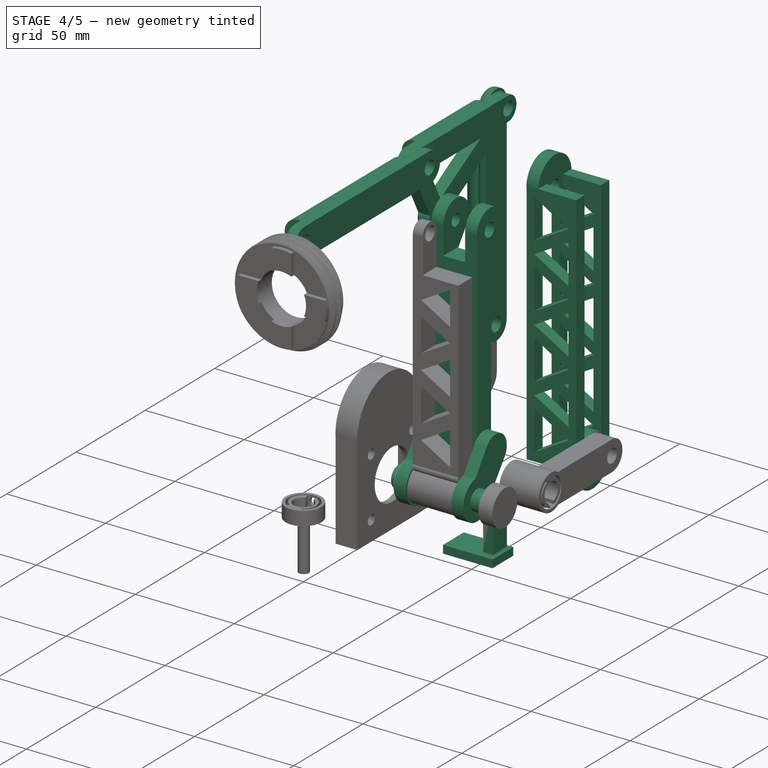
[diagram: stage 4 of 5 — iso view after this stage's code; geometry added in this stage tinted green]
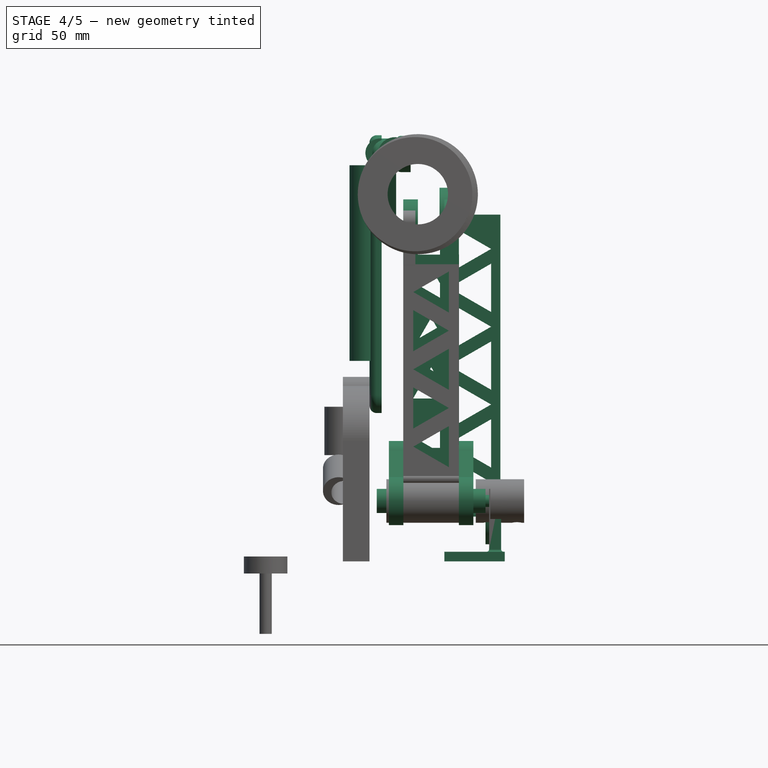
[diagram: stage 4 of 5 — front view after this stage's code; geometry added in this stage tinted green]
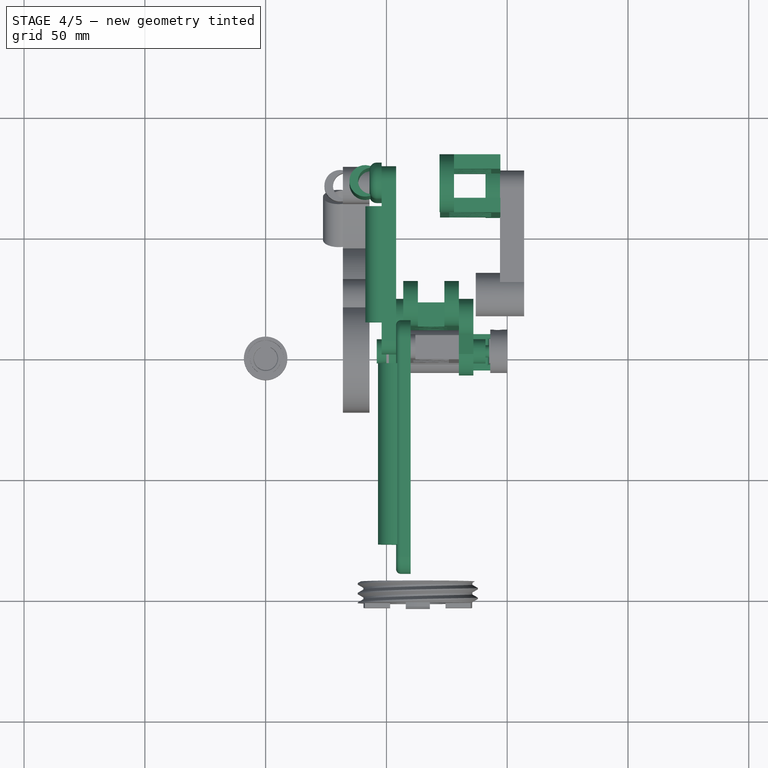
[diagram: stage 4 of 5 — top view after this stage's code; geometry added in this stage tinted green]
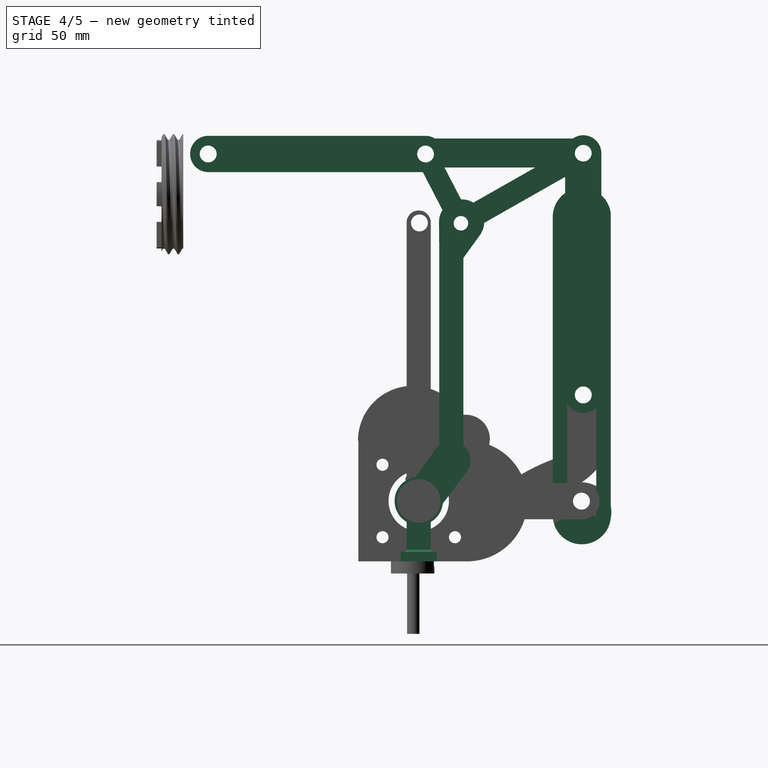
[diagram: stage 4 of 5 — right view after this stage's code; geometry added in this stage tinted green]
FEATURE [Part::Cylinder] Cylinder012  label="Union motor_brazo central"
  Angle = 360
  AttacherType = Attacher::AttachEngine3D
  Height = 6
  Placement = pos=(54,2.5,30) rot=(0,1,0;1.5708rad)
  Radius = 10
FEATURE [Part::Cylinder] Cylinder013  label="Rotor003"
  Angle = 360
  AttacherType = Attacher::AttachEngine3D
  Height = 30
  Placement = pos=(63,2.5,30) rot=(0,1,0;1.5708rad)
  Radius = 7
FEATURE [Part::Cut] Cut008
  Base = -> Cylinder012
  Refine = true
  Tool = -> Cylinder013
FEATURE [Sketcher::SketchObject] Sketch001  label="sk puente pieza medio"
  FullyConstrained = false
  Placement = pos=(0,0,0) rot=(0.57735,0.57735,0.57735;2.0944rad)
  sketch-geometry (4):
    g0: ArcOfCircle CenterX=16.2651 CenterY=46.811 CenterZ=0 NormalX=0 NormalY=0 NormalZ=1 AngleXU=0 Radius=8 StartAngle=5.6375 EndAngle=8.90158
    g1: LineSegment StartX=9.33532 StartY=50.8082 StartZ=0 EndX=1.55282 EndY=39.8999 EndZ=0
    g2: LineSegment StartX=22.6546 StartY=41.9971 StartZ=0 EndX=12.6656 EndY=28.7389 EndZ=0
    g3: ArcOfCircle CenterX=1.13638 CenterY=28.3723 CenterZ=0 NormalX=0 NormalY=0 NormalZ=1 AngleXU=0 Radius=11.5351 StartAngle=0.0317838 EndAngle=1.53469
  constraints (11):
    c: Radius(g0) = 8
    c: PointOnObject(g0,g2)
    c: Coincident(g0,g1)
    c: Distance(g1) = 13.4
    c: Distance(g2) = 16.6
    c: Distance(g0,g2) = 15.97
    c: Tangent(g2,g0) = 1.5708
    c: Coincident(g3,g1)
    c: Coincident(g3,g2)
    c: Angle(g3) = 1.5029
    c: Distance(g1,g2) = 15.75
FEATURE [Part::Cylinder] Cylinder018  label="Rotor008"
  Angle = 360
  AttacherType = Attacher::AttachEngine3D
  Height = 25
  Placement = pos=(40,2.5,30) rot=(0,1,0;1.5708rad)
  Radius = 3
FEATURE [Part::Cut] Cut011  label="Union motor izq"
  Base = -> Cut008
  Refine = true
  Tool = -> Cylinder018
FEATURE [Part::Extrusion] Extrude001
  Base = -> Sketch001
  Dir = (1,0,0)
  DirMode = 2
  FaceMakerClass = Part::FaceMakerBullseye
  LengthFwd = 6
  LengthRev = 0
  Placement = pos=(54,-0.35,0) rot=(0,0,1;0rad)
  Solid = true
  Symmetric = false
FEATURE [Part::MultiFuse] Fusion013  label="Union motor centro"
  Refine = true
  Shapes = -> [Extrude001,Cut011]
FEATURE [Part::Box] Box022  label="Puente centro"
  AttacherType = Attacher::AttachEngine3D
  Height = 10
  Length = 23
  Placement = pos=(60,11,42) rot=(0,0,1;0rad)
  Width = 10
FEATURE [App::Link] Link016  label="Union motor centro001"
  LinkPlacement = pos=(29,-3.45707e-06,0) rot=(0,0,1;0rad)
  LinkedObject = -> Fusion013
  Placement = pos=(29,-3.45707e-06,0) rot=(0,0,1;0rad)
FEATURE [Part::Cylinder] Cylinder020  label="Rotor009"
  Angle = 360
  AttacherType = Attacher::AttachEngine3D
  Height = 45
  Placement = pos=(40,2.5,30) rot=(0,1,0;1.5708rad)
  Radius = 5
FEATURE [Part::Cylinder] Cylinder021  label="hueco rotor"
  Angle = 360
  AttacherType = Attacher::AttachEngine3D
  Height = 50
  Placement = pos=(37,2.5,30) rot=(0,1,0;1.5708rad)
  Radius = 2.7
FEATURE [Part::Cut] Cut012  label="Cilindro de union"
  Base = -> Cylinder020
  Placement = pos=(9,0,0) rot=(0,0,1;0rad)
  Refine = true
  Tool = -> Cylinder021
FEATURE [Part::MultiFuse] Fusion014  label="Union rotor brazo"
  Placement = pos=(-3,0,0) rot=(0,0,1;0rad)
  Refine = true
  Shapes = -> [Cut012,Link016,Fusion013,Box022]
FEATURE [Part::Cylinder] Cylinder024  label="tapon rotor"
  Angle = 360
  AttacherType = Attacher::AttachEngine3D
  Height = 5
  Placement = pos=(92,2.5,30) rot=(0,1,0;1.5708rad)
  Radius = 2.5
FEATURE [Part::Box] Box023  label="soporte tapon"
  AttacherType = Attacher::AttachEngine3D
  Height = 30
  Length = 5
  Placement = pos=(96.5,-2.5,5) rot=(0,0,1;0rad)
  Width = 10
FEATURE [Part::MultiFuse] Fusion016  label="tapon/soporte"
  Refine = true
  Shapes = -> [Box023,Cylinder024]
FEATURE [Part::Box] Box024  label="Base tapon"
  AttacherType = Attacher::AttachEngine3D
  Height = 4
  Length = 25
  Placement = pos=(78,-5,5) rot=(0,0,1;0rad)
  Width = 15
FEATURE [Part::MultiFuse] Fusion017  label="Tapon brazo central"
  Placement = pos=(-4,0,0) rot=(0,0,1;0rad)
  Refine = true
  Shapes = -> [Box024,Fusion016]
FEATURE [Sketcher::SketchObject] Sketch002  label="Sk palito2"
  FullyConstrained = false
  Placement = pos=(0,0,0) rot=(0.57735,-0.57735,-0.57735;2.0944rad)
  sketch-geometry (6):
    g0: ArcOfCircle CenterX=-70.6079 CenterY=173.903 CenterZ=0 NormalX=0 NormalY=0 NormalZ=1 AngleXU=0 Radius=7.5 StartAngle=1.6e-15 EndAngle=3.14159
    g1: ArcOfCircle CenterX=-70.6079 CenterY=73.9033 CenterZ=0 NormalX=0 NormalY=0 NormalZ=1 AngleXU=0 Radius=7.5 StartAngle=3.14159 EndAngle=6.28319
    g2: LineSegment StartX=-78.1079 StartY=173.903 StartZ=0 EndX=-78.1079 EndY=73.9033 EndZ=0
    g3: LineSegment StartX=-63.1079 StartY=173.903 StartZ=0 EndX=-63.1079 EndY=73.9033 EndZ=0
    g4: Circle CenterX=-70.6079 CenterY=73.9033 CenterZ=0 NormalX=0 NormalY=0 NormalZ=1 AngleXU=0 Radius=3.5
    g5: Circle CenterX=-70.6079 CenterY=173.903 CenterZ=0 NormalX=0 NormalY=0 NormalZ=1 AngleXU=0 Radius=3.5
  constraints (12):
    c: Tangent(g0,g3) = 1.5708
    c: Tangent(g0,g2) = -1.5708
    c: Tangent(g2,g1) = -1.5708
    c: Tangent(g3,g1) = 1.5708
    c: Vertical(g2)
    c: Equal(g0,g1)
    c: DistanceY(g3,g3) = 100
    c: DistanceX(g1,g1) = 15
    c: Coincident(g4,g1)
    c: Radius(g4) = 3.5
    c: Coincident(g5,g0)
    c: Radius(g5) = 3.5
FEATURE [Part::Extrusion] Extrude002  label="palito 2"
  Base = -> Sketch002
  Dir = (-1,0,0)
  DirMode = 2
  FaceMakerClass = Part::FaceMakerBullseye
  LengthFwd = 5
  LengthRev = 0
  Placement = pos=(48,0,0) rot=(0,0,1;0rad)
  Solid = true
  Symmetric = false
FEATURE [Sketcher::SketchObject] Sketch010  label="sk palito 3 hombro"
  FullyConstrained = true
  Placement = pos=(0,0,0) rot=(0.57735,-0.57735,-0.57735;2.0944rad)
  sketch-geometry (6):
    g0: ArcOfCircle CenterX=0 CenterY=0 CenterZ=0 NormalX=0 NormalY=0 NormalZ=1 AngleXU=0 Radius=7.5 StartAngle=1.5708 EndAngle=4.71239
    g1: ArcOfCircle CenterX=90 CenterY=1e-16 CenterZ=0 NormalX=0 NormalY=0 NormalZ=1 AngleXU=0 Radius=7.5 StartAngle=4.71239 EndAngle=7.85398
    g2: LineSegment StartX=-1.4e-15 StartY=-7.5 StartZ=0 EndX=90 EndY=-7.5 EndZ=0
    g3: LineSegment StartX=-1.2e-15 StartY=7.5 StartZ=0 EndX=90 EndY=7.5 EndZ=0
    g4: Circle CenterX=0 CenterY=0 CenterZ=0 NormalX=0 NormalY=0 NormalZ=1 AngleXU=0 Radius=3.5
    g5: Circle CenterX=90 CenterY=1e-16 CenterZ=0 NormalX=0 NormalY=0 NormalZ=1 AngleXU=0 Radius=3.5
  constraints (13):
    c: Tangent(g0,g3) = 1.5708
    c: Tangent(g0,g2) = -1.5708
    c: Tangent(g2,g1) = -1.5708
    c: Tangent(g3,g1) = 1.5708
    c: Horizontal(g2)
    c: Equal(g0,g1)
    c: Coincident(g0,g-1)
    c: DistanceX(g3,g3) = 90
    c: DistanceY(g1,g1) = 15
    c: Coincident(g4,g0)
    c: Coincident(g5,g1)
    c: Radius(g4) = 3.5
    c: Radius(g5) = 3.5
FEATURE [Part::Extrusion] Extrude009  label="Palito 3 hombro"
  Base = -> Sketch010
  Dir = (-1,0,0)
  DirMode = 2
  FaceMakerClass = Part::FaceMakerBullseye
  LengthFwd = 6
  LengthRev = 0
  Placement = pos=(60,5.35,173.65) rot=(0,0,1;0rad)
  Solid = true
  Symmetric = false
FEATURE [Sketcher::SketchObject] Sketch011  label="sk triangulo inferior"
  FullyConstrained = false
  Placement = pos=(0,0,0) rot=(0.57735,-0.57735,-0.57735;2.0944rad)
  sketch-geometry (6):
    g0: ArcOfCircle CenterX=-70.6361 CenterY=173.894 CenterZ=0 NormalX=0 NormalY=0 NormalZ=1 AngleXU=0 Radius=4.75 StartAngle=1.05414 EndAngle=4.19573
    g1: ArcOfCircle CenterX=-18.5892 CenterY=144.325 CenterZ=0 NormalX=0 NormalY=0 NormalZ=1 AngleXU=0 Radius=4.75 StartAngle=4.19573 EndAngle=7.33733
    g2: LineSegment StartX=-72.9825 StartY=169.764 StartZ=0 EndX=-20.9356 EndY=140.195 EndZ=0
    g3: LineSegment StartX=-68.2897 StartY=178.024 StartZ=0 EndX=-16.2428 EndY=148.455 EndZ=0
    g4: Circle CenterX=-70.6361 CenterY=173.894 CenterZ=0 NormalX=0 NormalY=0 NormalZ=1 AngleXU=0 Radius=3.5
    g5: Circle CenterX=-19.9969 CenterY=144.998 CenterZ=0 NormalX=0 NormalY=0 NormalZ=1 AngleXU=0 Radius=3.5
  constraints (11):
    c: Tangent(g0,g3) = 1.5708
    c: Tangent(g0,g2) = -1.5708
    c: Tangent(g2,g1) = -1.5708
    c: Tangent(g3,g1) = 1.5708
    c: Equal(g0,g1)
    c: Coincident(g4,g0)
    c: Radius(g4) = 3.5
    c: Distance(g1,g1) = 9.5
    c: Radius(g5) = 3.5
    c: Distance(g3) = 59.86
    c: Distance(g5,g1) = 1.56
FEATURE [Sketcher::SketchObject] Sketch012  label="sk triangulo superior"
  FullyConstrained = false
  Placement = pos=(0,0,0) rot=(0.57735,-0.57735,-0.57735;2.0944rad)
  sketch-geometry (6):
    g0: ArcOfCircle CenterX=-70.5829 CenterY=174.038 CenterZ=0 NormalX=0 NormalY=0 NormalZ=1 AngleXU=0 Radius=6 StartAngle=1.5708 EndAngle=4.71239
    g1: ArcOfCircle CenterX=-4.73287 CenterY=174.038 CenterZ=0 NormalX=0 NormalY=0 NormalZ=1 AngleXU=0 Radius=6 StartAngle=4.71239 EndAngle=7.85398
    g2: LineSegment StartX=-70.5829 StartY=168.038 StartZ=0 EndX=-4.73287 EndY=168.038 EndZ=0
    g3: LineSegment StartX=-70.5829 StartY=180.038 StartZ=0 EndX=-4.73287 EndY=180.038 EndZ=0
    g4: Circle CenterX=-70.5829 CenterY=174.038 CenterZ=0 NormalX=0 NormalY=0 NormalZ=1 AngleXU=0 Radius=3.5
    g5: Circle CenterX=-5.35674 CenterY=173.64 CenterZ=0 NormalX=0 NormalY=0 NormalZ=1 AngleXU=0 Radius=3.5
  constraints (12):
    c: Tangent(g0,g3) = 1.5708
    c: Tangent(g0,g2) = -1.5708
    c: Tangent(g2,g1) = -1.5708
    c: Tangent(g3,g1) = 1.5708
    c: Horizontal(g2)
    c: Equal(g0,g1)
    c: Coincident(g4,g0)
    c: Radius(g4) = 3.5
    c: Radius(g5) = 3.5
    c: DistanceX(g3,g3) = 65.85
    c: DistanceY(g0,g0) = 12
    c: Distance(g5,g1) = 0.74
FEATURE [Sketcher::SketchObject] Sketch013  label="sk triangulo der"
  FullyConstrained = false
  Placement = pos=(0,0,0) rot=(0.57735,-0.57735,-0.57735;2.0944rad)
  sketch-geometry (6):
    g0: ArcOfCircle CenterX=-5.29587 CenterY=173.614 CenterZ=0 NormalX=0 NormalY=0 NormalZ=1 AngleXU=0 Radius=4.425 StartAngle=5.80493 EndAngle=8.94652
    g1: ArcOfCircle CenterX=-20.1521 CenterY=144.956 CenterZ=0 NormalX=0 NormalY=0 NormalZ=1 AngleXU=0 Radius=4.425 StartAngle=2.66334 EndAngle=5.80493
    g2: LineSegment StartX=-9.22438 StartY=175.65 StartZ=0 EndX=-24.0806 EndY=146.992 EndZ=0
    g3: LineSegment StartX=-1.36736 StartY=171.577 StartZ=0 EndX=-16.2236 EndY=142.919 EndZ=0
    g4: Circle CenterX=-5.29587 CenterY=173.614 CenterZ=0 NormalX=0 NormalY=0 NormalZ=1 AngleXU=0 Radius=3.5
    g5: Circle CenterX=-19.9121 CenterY=144.96 CenterZ=0 NormalX=0 NormalY=0 NormalZ=1 AngleXU=0 Radius=3.5
  constraints (11):
    c: Tangent(g0,g3) = 1.5708
    c: Tangent(g0,g2) = -1.5708
    c: Tangent(g2,g1) = -1.5708
    c: Tangent(g3,g1) = 1.5708
    c: Equal(g0,g1)
    c: Coincident(g4,g0)
    c: Radius(g4) = 3.5
    c: Radius(g5) = 3.5
    c: Distance(g1,g5) = 0.24
    c: Distance(g3) = 32.28
    c: Distance(g0,g0) = 8.85
FEATURE [Part::Extrusion] Extrude010  label="triangulo inferior"
  Base = -> Sketch011
  Dir = (-1,0,0)
  DirMode = 2
  FaceMakerClass = Part::FaceMakerBullseye
  LengthFwd = 6
  LengthRev = 0
  Solid = true
  Symmetric = false
FEATURE [Part::Extrusion] Extrude012  label="triangulo der"
  Base = -> Sketch013
  Dir = (-1,0,0)
  DirMode = 2
  FaceMakerClass = Part::FaceMakerBullseye
  LengthFwd = 6
  LengthRev = 0
  Solid = true
  Symmetric = false
FEATURE [Sketcher::SketchObject] Sketch016  label="Sk palo central"
  FullyConstrained = false
  Placement = pos=(0,0,0) rot=(1,0,0;1.5708rad)
  sketch-geometry (16):
    g0: LineSegment StartX=57.035 StartY=131.906 StartZ=0 EndX=80.035 EndY=131.906 EndZ=0
    g1: LineSegment StartX=57.035 StartY=41.9056 StartZ=0 EndX=80.035 EndY=41.9056 EndZ=0
    g2: LineSegment StartX=80.035 StartY=131.906 StartZ=0 EndX=80.035 EndY=41.9056 EndZ=0
    g3: LineSegment StartX=57.035 StartY=131.906 StartZ=0 EndX=57.035 EndY=41.9056 EndZ=0
    g4: LineSegment StartX=68.535 StartY=64.9266 StartZ=0 EndX=61.035 EndY=51.9362 EndZ=0
    g5: LineSegment StartX=61.035 StartY=51.9362 StartZ=0 EndX=76.035 EndY=51.9362 EndZ=0
    g6: LineSegment StartX=68.535 StartY=64.9266 StartZ=0 EndX=76.035 EndY=51.9362 EndZ=0
    g7: LineSegment StartX=68.535 StartY=85.417 StartZ=0 EndX=61.035 EndY=72.4266 EndZ=0
    g8: LineSegment StartX=61.035 StartY=72.4266 StartZ=0 EndX=76.035 EndY=72.4266 EndZ=0
    g9: LineSegment StartX=68.535 StartY=85.417 StartZ=0 EndX=76.035 EndY=72.4266 EndZ=0
    g10: LineSegment StartX=68.535 StartY=105.907 StartZ=0 EndX=61.035 EndY=92.917 EndZ=0
    g11: LineSegment StartX=61.035 StartY=92.917 StartZ=0 EndX=76.035 EndY=92.917 EndZ=0
    g12: LineSegment StartX=68.535 StartY=105.907 StartZ=0 EndX=76.035 EndY=92.917 EndZ=0
    g13: LineSegment StartX=68.535 StartY=126.398 StartZ=0 EndX=61.035 EndY=113.407 EndZ=0
    g14: LineSegment StartX=61.035 StartY=113.407 StartZ=0 EndX=76.035 EndY=113.407 EndZ=0
    g15: LineSegment StartX=68.535 StartY=126.398 StartZ=0 EndX=76.035 EndY=113.407 EndZ=0
  constraints (45):
    c: Horizontal(g0)
    c: Horizontal(g1)
    c: Coincident(g2,g0)
    c: Coincident(g2,g1)
    c: Vertical(g2)
    c: Coincident(g3,g0)
    c: Coincident(g3,g1)
    c: Vertical(g3)
    c: DistanceX(g0,g0) = 23
    c: DistanceY(g3,g3) = 90
    c: Coincident(g5,g4)
    c: Horizontal(g5)
    c: Coincident(g6,g4)
    c: Coincident(g6,g5)
    c: Angle(g5,g4) = 1.0472
    c: Angle(g4,g6) = 1.0472
    c: DistanceX(g5,g5) = 15
    c: Distance(g4,g3) = 4
    c: Coincident(g8,g7)
    c: Horizontal(g8)
    c: Coincident(g9,g7)
    c: Coincident(g9,g8)
    c: Angle(g7,g9) = 1.0472
    c: Angle(g8,g7) = 1.0472
    c: DistanceX(g8,g8) = 15
    c: Distance(g7,g3) = 4
    c: Distance(g4,g8) = 7.5
    c: Coincident(g11,g10)
    c: Coincident(g12,g10)
    c: Coincident(g12,g11)
    c: Angle(g10,g12) = 1.0472
    c: Angle(g11,g10) = 1.0472
    c: Horizontal(g11)
    c: Distance(g10,g3) = 4
    c: DistanceX(g11,g11) = 15
    c: Distance(g7,g11) = 7.5
    c: Coincident(g14,g13)
    c: Horizontal(g14)
    c: Coincident(g15,g13)
    c: Coincident(g15,g14)
    c: Angle(g13,g15) = 1.0472
    c: Angle(g14,g13) = 1.0472
    c: DistanceX(g14,g14) = 15
    c: Distance(g13,g3) = 4
    c: Distance(g10,g14) = 7.5
FEATURE [Part::Extrusion] Extrude015  label="Palo central"
  Base = -> Sketch016
  Dir = (0,-1,3e-16)
  DirMode = 2
  FaceMakerClass = Part::FaceMakerBullseye
  LengthFwd = 10
  LengthRev = 0
  Placement = pos=(0,21,0) rot=(0,0,1;0rad)
  Solid = true
  Symmetric = false
FEATURE [Sketcher::SketchObject] Sketch017  label="sk union brazo central001"
  FullyConstrained = false
  Placement = pos=(0,0,0) rot=(0.57735,-0.57735,-0.57735;2.0944rad)
  sketch-geometry (5):
    g0: ArcOfCircle CenterX=-20.211 CenterY=145.481 CenterZ=0 NormalX=0 NormalY=0 NormalZ=1 AngleXU=0 Radius=9.31058 StartAngle=6.27538 EndAngle=10.0465
    g1: LineSegment StartX=-27.7793 StartY=140.058 StartZ=0 EndX=-20.0269 EndY=129.238 EndZ=0
    g2: LineSegment StartX=-10.9007 StartY=145.408 StartZ=0 EndX=-11.0269 EndY=129.238 EndZ=0
    g3: LineSegment StartX=-20.0269 StartY=129.238 StartZ=0 EndX=-11.0269 EndY=129.238 EndZ=0
    g4: Circle CenterX=-19.958 CenterY=144.959 CenterZ=0 NormalX=0 NormalY=0 NormalZ=1 AngleXU=0 Radius=3
  constraints (12):
    c: Tangent(g0,g2) = 1.5708
    c: Tangent(g0,g1) = -1.5708
    c: Coincident(g3,g1)
    c: Coincident(g3,g2)
    c: Horizontal(g3)
    c: Radius(g4) = 3
    c: Distance(g4,g0) = 0.58
    c: Angle(g0) = 3.77113
    c: Distance(g4,g0) = 9.23
    c: DistanceX(g3,g3) = 9
    c: Distance(g2) = 16.17
    c: Distance(g1) = 13.31
FEATURE [Part::Extrusion] Extrude016  label="Union brazo central002"
  Base = -> Sketch017
  Dir = (-1,0,0)
  DirMode = 2
  FaceMakerClass = Part::FaceMakerBullseye
  LengthFwd = 6
  LengthRev = 0
  Placement = pos=(63,0,0) rot=(0,0,1;0rad)
  Solid = true
  Symmetric = false
FEATURE [Sketcher::SketchObject] Sketch018  label="sk estructura triangulos"
  FullyConstrained = false
  Placement = pos=(0,0,0) rot=(1,0,0;1.5708rad)
  sketch-geometry (25):
    g0: LineSegment StartX=72.1776 StartY=148.543 StartZ=0 EndX=97.1776 EndY=148.543 EndZ=0
    g1: LineSegment StartX=72.1776 StartY=23.5426 StartZ=0 EndX=97.1776 EndY=23.5426 EndZ=0
    g2: LineSegment StartX=72.1776 StartY=148.543 StartZ=0 EndX=72.1776 EndY=23.5426 EndZ=0
    g3: LineSegment StartX=97.1776 StartY=148.543 StartZ=0 EndX=97.1776 EndY=23.5426 EndZ=0
    g4: LineSegment StartX=76.0171 StartY=47.7426 StartZ=0 EndX=76.0171 EndY=27.7426 EndZ=0
    g5: LineSegment StartX=76.0171 StartY=47.7426 StartZ=0 EndX=93.3376 EndY=37.7426 EndZ=0
    g6: LineSegment StartX=76.0171 StartY=27.7426 StartZ=0 EndX=93.3376 EndY=37.7426 EndZ=0
    g7: LineSegment StartX=76.0171 StartY=53.8426 StartZ=0 EndX=93.3376 EndY=43.8426 EndZ=0
    g8: LineSegment StartX=76.0171 StartY=53.8426 StartZ=0 EndX=93.3376 EndY=63.8426 EndZ=0
    g9: LineSegment StartX=93.3376 StartY=43.8426 StartZ=0 EndX=93.3376 EndY=63.8426 EndZ=0
    g10: LineSegment StartX=76.0171 StartY=79.9426 StartZ=0 EndX=76.0171 EndY=59.9426 EndZ=0
    g11: LineSegment StartX=76.0171 StartY=79.9426 StartZ=0 EndX=93.3376 EndY=69.9426 EndZ=0
    g12: LineSegment StartX=76.0171 StartY=59.9426 StartZ=0 EndX=93.3376 EndY=69.9426 EndZ=0
    g13: LineSegment StartX=76.0171 StartY=112.143 StartZ=0 EndX=76.0171 EndY=92.1426 EndZ=0
    g14: LineSegment StartX=76.0171 StartY=112.143 StartZ=0 EndX=93.3376 EndY=102.143 EndZ=0
    g15: LineSegment StartX=76.0171 StartY=92.1426 StartZ=0 EndX=93.3376 EndY=102.143 EndZ=0
    g16: LineSegment StartX=76.0171 StartY=144.343 StartZ=0 EndX=76.0171 EndY=124.343 EndZ=0
    g17: LineSegment StartX=76.0171 StartY=144.343 StartZ=0 EndX=93.3376 EndY=134.343 EndZ=0
    g18: LineSegment StartX=76.0171 StartY=124.343 StartZ=0 EndX=93.3376 EndY=134.343 EndZ=0
    g19: LineSegment StartX=76.0171 StartY=86.0426 StartZ=0 EndX=93.3376 EndY=96.0426 EndZ=0
    g20: LineSegment StartX=76.0171 StartY=86.0426 StartZ=0 EndX=93.3376 EndY=76.0426 EndZ=0
    g21: LineSegment StartX=93.3376 StartY=76.0426 StartZ=0 EndX=93.3376 EndY=96.0426 EndZ=0
    g22: LineSegment StartX=76.0171 StartY=118.243 StartZ=0 EndX=93.3376 EndY=128.243 EndZ=0
    g23: LineSegment StartX=76.0171 StartY=118.243 StartZ=0 EndX=93.3376 EndY=108.243 EndZ=0
    g24: LineSegment StartX=93.3376 StartY=108.243 StartZ=0 EndX=93.3376 EndY=128.243 EndZ=0
  constraints (73):
    c: Horizontal(g0)
    c: Horizontal(g1)
    c: Coincident(g2,g0)
    c: Coincident(g2,g1)
    c: Vertical(g2)
    c: Coincident(g3,g0)
    c: Coincident(g3,g1)
    c: Vertical(g3)
    c: DistanceX(g0,g0) = 25
    c: DistanceY(g2,g2) = 125
    c: Vertical(g4)
    c: Coincident(g5,g4)
    c: Coincident(g6,g4)
    c: Coincident(g6,g5)
    c: Angle(g5,g6) = 1.0472
    c: Angle(g4,g5) = 1.0472
    c: DistanceY(g4,g4) = 20
    c: Coincident(g8,g7)
    c: Coincident(g9,g7)
    c: Coincident(g9,g8)
    c: Angle(g8,g9) = 1.0472
    c: Angle(g7,g8) = 1.0472
    c: Vertical(g9)
    c: DistanceY(g9,g9) = 20
    c: Vertical(g10)
    c: Coincident(g11,g10)
    c: Coincident(g12,g10)
    c: Coincident(g12,g11)
    c: Angle(g11,g12) = 1.0472
    c: Angle(g10,g11) = 1.0472
    c: DistanceY(g10,g10) = 20
    c: DistanceY(g5,g7) = 6.1
    c: DistanceY(g7,g10) = 6.1
    c: Vertical(g13)
    c: Coincident(g14,g13)
    c: Coincident(g15,g13)
    c: Angle(g14,g15) = 1.0472
    c: Angle(g13,g14) = 1.0472
    c: DistanceY(g13,g13) = 20
    c: Vertical(g16)
    c: Coincident(g17,g16)
    c: Coincident(g18,g16)
    c: Coincident(g18,g17)
    c: Angle(g17,g18) = 1.0472
    c: Angle(g16,g17) = 1.0472
    c: DistanceY(g16,g16) = 20
    c: Coincident(g19,g20)
    c: Coincident(g21,g20)
    c: Coincident(g21,g19)
    c: Angle(g19,g21) = 1.0472
    c: Angle(g20,g19) = 1.0472
    c: Vertical(g21)
    c: DistanceY(g21,g21) = 20
    c: DistanceY(g11,g20) = 6.1
    c: DistanceY(g19,g13) = 6.1
    c: Coincident(g22,g23)
    c: Coincident(g24,g22)
    c: Angle(g22,g24) = 1.0472
    c: Angle(g23,g22) = 1.0472
    c: Vertical(g24)
    c: DistanceY(g24,g24) = 20
    c: Coincident(g15,g14)
    c: DistanceY(g14,g23) = 6.1
    c: Coincident(g24,g23)
    c: DistanceY(g22,g16) = 6.1
    c: Distance(g5,g3) = 3.84
    c: Distance(g7,g3) = 3.84
    c: Distance(g11,g3) = 3.84
    c: Distance(g20,g3) = 3.84
    c: Distance(g14,g3) = 3.84
    c: Distance(g23,g3) = 3.84
    c: Distance(g17,g3) = 3.84
    c: Distance(g16,g0) = 4.2
FEATURE [Part::Extrusion] Extrude017  label="Palo triangular"
  Base = -> Sketch018
  Dir = (0,-1,3e-16)
  DirMode = 2
  FaceMakerClass = Part::FaceMakerBullseye
  LengthFwd = 6
  LengthRev = 0
  Placement = pos=(0,64,0) rot=(0,0,1;0rad)
  Solid = true
  Symmetric = false
FEATURE [App::Link] Link019  label="Palo triangular001"
  LinkPlacement = pos=(0,82,0) rot=(0,0,1;0rad)
  LinkedObject = -> Extrude017
  Placement = pos=(0,82,0) rot=(0,0,1;0rad)
FEATURE [Sketcher::SketchObject] Sketch019  label="sk link superior"
  FullyConstrained = false
  Placement = pos=(0,0,0) rot=(0.57735,0.57735,0.57735;2.0944rad)
  sketch-geometry (3):
    g0: ArcOfCircle CenterX=70.0367 CenterY=147.609 CenterZ=0 NormalX=0 NormalY=0 NormalZ=1 AngleXU=0 Radius=12.0458 StartAngle=0.0872665 EndAngle=3.05433
    g1: ArcOfCircle CenterX=70.0367 CenterY=149.709 CenterZ=0 NormalX=0 NormalY=0 NormalZ=1 AngleXU=0 Radius=12.0458 StartAngle=3.22886 EndAngle=6.19592
    g2: Circle CenterX=69.992 CenterY=144.999 CenterZ=0 NormalX=0 NormalY=0 NormalZ=1 AngleXU=0 Radius=3.5
  constraints (6):
    c: Angle(g0) = 2.96706
    c: Coincident(g1,g0)
    c: Angle(g1) = 2.96706
    c: Coincident(g1,g0)
    c: Radius(g2) = 3.5
    c: DistanceX(g0,g0) = 24
FEATURE [Part::Extrusion] Extrude018  label="union parte arriba"
  Base = -> Sketch019
  Dir = (1,0,0)
  DirMode = 2
  FaceMakerClass = Part::FaceMakerBullseye
  LengthFwd = 6
  LengthRev = 0
  Placement = pos=(72,0,0) rot=(0,0,1;0rad)
  Solid = true
  Symmetric = false
FEATURE [Sketcher::SketchObject] Sketch020  label="sk link abajo"
  FullyConstrained = false
  Placement = pos=(0,0,0) rot=(0.57735,0.57735,0.57735;2.0944rad)
  sketch-geometry (3):
    g0: ArcOfCircle CenterX=70.0008 CenterY=24.1089 CenterZ=0 NormalX=0 NormalY=0 NormalZ=1 AngleXU=0 Radius=12.046 StartAngle=3.2245 EndAngle=6.19156
    g1: ArcOfCircle CenterX=70.0067 CenterY=25.4688 CenterZ=0 NormalX=0 NormalY=0 NormalZ=1 AngleXU=0 Radius=12.2397 StartAngle=6.08065 EndAngle=9.6186
    g2: Circle CenterX=69.8671 CenterY=29.9285 CenterZ=0 NormalX=0 NormalY=0 NormalZ=1 AngleXU=0 Radius=3.5
  constraints (5):
    c: Angle(g0) = 2.96706
    c: DistanceX(g0,g0) = 24
    c: Coincident(g0,g1)
    c: Coincident(g1,g0)
    c: Radius(g2) = 3.5
FEATURE [Part::Extrusion] Extrude019  label="union parte abajo"
  Base = -> Sketch020
  Dir = (1,0,0)
  DirMode = 2
  FaceMakerClass = Part::FaceMakerBullseye
  LengthFwd = 6
  LengthRev = 0
  Placement = pos=(91,0,0) rot=(0,0,1;0rad)
  Solid = true
  Symmetric = false
FEATURE [Part::MultiFuse] Fusion023  label="Palito 2 codo v2"
  Refine = true
  Shapes = -> [Extrude019,Extrude018,Link019,Extrude017]
FEATURE [Sketcher::SketchObject] Sketch021
  FullyConstrained = false
  Placement = pos=(0,0,0) rot=(1,0,0;1.5708rad)
  sketch-geometry (19):
    g0: LineSegment StartX=56.5408 StartY=133.111 StartZ=0 EndX=56.5408 EndY=43.1108 EndZ=0
    g1: LineSegment StartX=79.5408 StartY=133.111 StartZ=0 EndX=79.5408 EndY=43.1108 EndZ=0
    g2: LineSegment StartX=56.5408 StartY=43.1108 StartZ=0 EndX=79.5408 EndY=43.1108 EndZ=0
    g3: LineSegment StartX=56.5408 StartY=133.111 StartZ=0 EndX=79.5408 EndY=133.111 EndZ=0
    g4: LineSegment StartX=60.6808 StartY=57.6108 StartZ=0 EndX=75.4033 EndY=66.1108 EndZ=0
    g5: LineSegment StartX=60.6808 StartY=57.6108 StartZ=0 EndX=75.4033 EndY=49.1108 EndZ=0
    g6: LineSegment StartX=75.4033 StartY=66.1108 StartZ=0 EndX=75.4033 EndY=49.1108 EndZ=0
    g7: LineSegment StartX=60.6784 StartY=65.1108 StartZ=0 EndX=60.6784 EndY=82.1108 EndZ=0
    g8: LineSegment StartX=60.6784 StartY=65.1108 StartZ=0 EndX=75.4008 EndY=73.6108 EndZ=0
    g9: LineSegment StartX=60.6784 StartY=82.1108 StartZ=0 EndX=75.4008 EndY=73.6108 EndZ=0
    g10: LineSegment StartX=60.6808 StartY=89.6108 StartZ=0 EndX=75.4033 EndY=98.1108 EndZ=0
    g11: LineSegment StartX=60.6808 StartY=89.6108 StartZ=0 EndX=75.4033 EndY=81.1108 EndZ=0
    g12: LineSegment StartX=75.4033 StartY=98.1108 StartZ=0 EndX=75.4033 EndY=81.1108 EndZ=0
    g13: LineSegment StartX=60.6784 StartY=97.1108 StartZ=0 EndX=60.6784 EndY=114.111 EndZ=0
    g14: LineSegment StartX=60.6784 StartY=97.1108 StartZ=0 EndX=75.4008 EndY=105.611 EndZ=0
    g15: LineSegment StartX=60.6784 StartY=114.111 StartZ=0 EndX=75.4008 EndY=105.611 EndZ=0
    g16: LineSegment StartX=60.6808 StartY=121.611 StartZ=0 EndX=75.4033 EndY=130.111 EndZ=0
    g17: LineSegment StartX=75.4033 StartY=130.111 StartZ=0 EndX=75.4033 EndY=113.111 EndZ=0
    g18: LineSegment StartX=60.6808 StartY=121.611 StartZ=0 EndX=75.4033 EndY=113.111 EndZ=0
  constraints (55):
    c: Vertical(g0)
    c: Vertical(g1)
    c: Coincident(g2,g0)
    c: Coincident(g2,g1)
    c: Horizontal(g2)
    c: Coincident(g3,g0)
    c: Coincident(g3,g1)
    c: Horizontal(g3)
    c: DistanceX(g3,g3) = 23
    c: DistanceY(g1,g1) = 90
    c: Coincident(g5,g4)
    c: Coincident(g6,g4)
    c: Coincident(g6,g5)
    c: Vertical(g6)
    c: Angle(g5,g4) = 1.0472
    c: Angle(g4,g6) = 1.0472
    c: DistanceY(g6,g6) = 17
    c: Distance(g4,g0) = 4.14
    c: Coincident(g8,g7)
    c: Coincident(g9,g7)
    c: Coincident(g9,g8)
    c: Angle(g8,g7) = 1.0472
    c: Angle(g7,g9) = 1.0472
    c: Vertical(g7)
    c: DistanceY(g7,g7) = 17
    c: Distance(g8,g1) = 4.14
    c: Coincident(g11,g10)
    c: Coincident(g12,g10)
    c: Coincident(g12,g11)
    c: Vertical(g12)
    c: Angle(g11,g10) = 1.0472
    c: Angle(g10,g12) = 1.0472
    c: DistanceY(g12,g12) = 17
    c: Distance(g10,g0) = 4.14
    c: Coincident(g14,g13)
    c: Coincident(g15,g13)
    c: Coincident(g15,g14)
    c: Angle(g14,g13) = 1.0472
    c: Angle(g13,g15) = 1.0472
    c: Vertical(g13)
    c: DistanceY(g13,g13) = 17
    c: Distance(g14,g1) = 4.14
    c: Coincident(g18,g16)
    c: Coincident(g17,g16)
    c: Coincident(g17,g18)
    c: Vertical(g17)
    c: Angle(g18,g16) = 1.0472
    c: Angle(g16,g17) = 1.0472
    c: DistanceY(g17,g17) = 17
    c: Distance(g16,g0) = 4.14
    c: Distance(g5,g2) = 6
    c: DistanceY(g4,g8) = 7.5
    c: DistanceY(g7,g10) = 7.5
    c: DistanceY(g10,g14) = 7.5
    c: DistanceY(g13,g16) = 7.5
FEATURE [Part::Extrusion] Extrude020  label="brazo central triangulos"
  Base = -> Sketch021
  Dir = (0,-1,3e-16)
  DirMode = 2
  FaceMakerClass = Part::FaceMakerBullseye
  LengthFwd = 10
  LengthRev = 0
  Placement = pos=(0.45,21,-1.11) rot=(0,0,1;0rad)
  Solid = true
  Symmetric = false
FEATURE [Part::Cylinder] Cylinder026  label="Union motor_brazo central001"
  Angle = 360
  AttacherType = Attacher::AttachEngine3D
  Height = 6
  Placement = pos=(54,2.5,30) rot=(0,1,0;1.5708rad)
  Radius = 10
FEATURE [Part::Cylinder] Cylinder027  label="Rotor010"
  Angle = 360
  AttacherType = Attacher::AttachEngine3D
  Height = 30
  Placement = pos=(63,2.5,30) rot=(0,1,0;1.5708rad)
  Radius = 7
FEATURE [Part::Cut] Cut013
  Base = -> Cylinder026
  Refine = true
  Tool = -> Cylinder027
FEATURE [Sketcher::SketchObject] Sketch022  label="sk puente pieza medio001"
  FullyConstrained = false
  Placement = pos=(0,0,0) rot=(0.57735,0.57735,0.57735;2.0944rad)
  sketch-geometry (4):
    g0: ArcOfCircle CenterX=16.2651 CenterY=46.811 CenterZ=0 NormalX=0 NormalY=0 NormalZ=1 AngleXU=0 Radius=8 StartAngle=5.6375 EndAngle=8.90158
    g1: LineSegment StartX=9.33532 StartY=50.8082 StartZ=0 EndX=1.55282 EndY=39.8999 EndZ=0
    g2: LineSegment StartX=22.6546 StartY=41.9971 StartZ=0 EndX=12.6656 EndY=28.7389 EndZ=0
    g3: ArcOfCircle CenterX=1.13638 CenterY=28.3723 CenterZ=0 NormalX=0 NormalY=0 NormalZ=1 AngleXU=0 Radius=11.5351 StartAngle=0.0317838 EndAngle=1.53469
  constraints (11):
    c: Radius(g0) = 8
    c: PointOnObject(g0,g2)
    c: Coincident(g0,g1)
    c: Distance(g1) = 13.4
    c: Distance(g2) = 16.6
    c: Distance(g0,g2) = 15.97
    c: Tangent(g2,g0) = 1.5708
    c: Coincident(g3,g1)
    c: Coincident(g3,g2)
    c: Angle(g3) = 1.5029
    c: Distance(g1,g2) = 15.75
FEATURE [Part::Cylinder] Cylinder028  label="Rotor011"
  Angle = 360
  AttacherType = Attacher::AttachEngine3D
  Height = 25
  Placement = pos=(40,2.5,30) rot=(0,1,0;1.5708rad)
  Radius = 3
FEATURE [Part::Cut] Cut014  label="Union motor izq001"
  Base = -> Cut013
  Refine = true
  Tool = -> Cylinder028
FEATURE [Part::Extrusion] Extrude021
  Base = -> Sketch022
  Dir = (1,0,0)
  DirMode = 2
  FaceMakerClass = Part::FaceMakerBullseye
  LengthFwd = 6
  LengthRev = 0
  Placement = pos=(54,-0.35,0) rot=(0,0,1;0rad)
  Solid = true
  Symmetric = false
FEATURE [Part::MultiFuse] Fusion024  label="Union motor centro002"
  Refine = true
  Shapes = -> [Extrude021,Cut014]
FEATURE [App::Link] Link020  label="Union motor centro003"
  LinkPlacement = pos=(29,-3.45707e-06,0) rot=(0,0,1;0rad)
  LinkedObject = -> Fusion024
  Placement = pos=(29,-3.45707e-06,0) rot=(0,0,1;0rad)
FEATURE [Part::Cylinder] Cylinder029  label="Rotor012"
  Angle = 360
  AttacherType = Attacher::AttachEngine3D
  Height = 45
  Placement = pos=(40,2.5,30) rot=(0,1,0;1.5708rad)
  Radius = 5
FEATURE [Part::Cylinder] Cylinder030  label="hueco rotor001"
  Angle = 360
  AttacherType = Attacher::AttachEngine3D
  Height = 50
  Placement = pos=(37,2.5,30) rot=(0,1,0;1.5708rad)
  Radius = 2.7
FEATURE [Part::Cut] Cut015  label="Cilindro de union001"
  Base = -> Cylinder029
  Placement = pos=(9,0,0) rot=(0,0,1;0rad)
  Refine = true
  Tool = -> Cylinder030
FEATURE [Part::MultiFuse] Fusion025  label="Union rotor brazo001"
  Placement = pos=(-3,0,0) rot=(0,0,1;0rad)
  Refine = true
  Shapes = -> [Cut015,Link020,Fusion024]
FEATURE [Sketcher::SketchObject] Sketch023  label="sk union brazo central002"
  FullyConstrained = false
  Placement = pos=(0,0,0) rot=(0.57735,-0.57735,-0.57735;2.0944rad)
  sketch-geometry (5):
    g0: ArcOfCircle CenterX=-20.2901 CenterY=145.53 CenterZ=0 NormalX=0 NormalY=0 NormalZ=1 AngleXU=0 Radius=9.32324 StartAngle=6.28259 EndAngle=10.0537
    g1: LineSegment StartX=-27.8293 StartY=140.045 StartZ=0 EndX=-20.9757 EndY=130.624 EndZ=0
    g2: LineSegment StartX=-10.9668 StartY=145.524 StartZ=0 EndX=-10.9757 EndY=130.624 EndZ=0
    g3: LineSegment StartX=-20.9757 StartY=130.624 StartZ=0 EndX=-10.9757 EndY=130.624 EndZ=0
    g4: Circle CenterX=-20.0005 CenterY=144.993 CenterZ=0 NormalX=0 NormalY=0 NormalZ=1 AngleXU=0 Radius=3.5
  constraints (11):
    c: Tangent(g0,g2) = 1.5708
    c: Tangent(g0,g1) = -1.5708
    c: Coincident(g3,g1)
    c: Coincident(g3,g2)
    c: Horizontal(g3)
    c: Radius(g4) = 3.5
    c: Angle(g0) = 3.77113
    c: DistanceX(g3,g3) = 10
    c: DistanceY(g2,g2) = 14.9
    c: Distance(g1) = 11.65
    c: Distance(g4,g0) = 0.61
FEATURE [Part::Extrusion] Extrude022  label="Union brazo central004"
  Base = -> Sketch023
  Dir = (-1,0,0)
  DirMode = 2
  FaceMakerClass = Part::FaceMakerBullseye
  LengthFwd = 6
  LengthRev = 0
  Placement = pos=(62.99,0,0) rot=(0,0,1;0rad)
  Solid = true
  Symmetric = false
FEATURE [App::Link] Link021  label="Union brazo central005"
  LinkPlacement = pos=(79.991,0,0) rot=(0,0,1;0rad)
  LinkedObject = -> Extrude022
  Placement = pos=(79.991,0,0) rot=(0,0,1;0rad)
FEATURE [Part::MultiFuse] Fusion026  label="Brazo central v3"
  Refine = true
  Shapes = -> [Fusion025,Extrude022,Link021,Extrude020]
FEATURE [Part::Fillet] Fillet  label="Tapon brazo centro"
  Base = -> Fusion017
  Edges = 4 edges r=1: [Edge10,Edge11,Edge12,Edge13]
FEATURE [Sketcher::SketchObject] Sketch024  label="sk_cables"
  FullyConstrained = false
  Placement = pos=(0,0,0) rot=(1,0,0;1.5708rad)
  sketch-geometry (2):
    g0: ArcOfCircle CenterX=0 CenterY=0 CenterZ=0 NormalX=0 NormalY=0 NormalZ=1 AngleXU=0 Radius=7 StartAngle=4.06642 EndAngle=8.49995
    g1: ArcOfCircle CenterX=-2.4797 CenterY=1e-16 CenterZ=0 NormalX=0 NormalY=0 NormalZ=1 AngleXU=0 Radius=5.85242 StartAngle=4.41156 EndAngle=8.15481
  constraints (5):
    c: Coincident(g0,g-1)
    c: Radius(g0) = 7
    c: Symmetric(g0,g0,g-1)
    c: Coincident(g1,g0)
    c: Coincident(g1,g0)
FEATURE [Part::Extrusion] Extrude023  label="Cables palo 3 hombro"
  Base = -> Sketch024
  Dir = (0,-1,6e-16)
  DirMode = 2
  FaceMakerClass = Part::FaceMakerBullseye
  LengthFwd = 75
  LengthRev = 0
  Placement = pos=(53.5,-5,173.6) rot=(0,1,0;3.14159rad)
  Solid = true
  Symmetric = false
FEATURE [Sketcher::SketchObject] Sketch026  label="sk_cables002"
  FullyConstrained = false
  Placement = pos=(0,0,0) rot=(1,0,0;1.5708rad)
  sketch-geometry (2):
    g0: ArcOfCircle CenterX=0 CenterY=0 CenterZ=0 NormalX=0 NormalY=0 NormalZ=1 AngleXU=0 Radius=6.5 StartAngle=4.07396 EndAngle=8.49241
    g1: ArcOfCircle CenterX=-2.45779 CenterY=0 CenterZ=0 NormalX=0 NormalY=0 NormalZ=1 AngleXU=0 Radius=5.40832 StartAngle=4.44753 EndAngle=8.11884
  constraints (5):
    c: Coincident(g0,g-1)
    c: Radius(g0) = 6.5
    c: Symmetric(g0,g0,g-1)
    c: Coincident(g1,g0)
    c: Coincident(g1,g0)
FEATURE [Part::Extrusion] Extrude025  label="Cables palo 2 hombro"
  Base = -> Sketch026
  Dir = (0,-1,2e-16)
  DirMode = 2
  FaceMakerClass = Part::FaceMakerBullseye
  LengthFwd = 81
  LengthRev = 0
  Placement = pos=(41.2,70.65,88) rot=(0,0.707107,-0.707107;3.14159rad)
  Solid = true
  Symmetric = false
FEATURE [Part::Fillet] Fillet001  label="palo 3 hombro"
  Base = -> Extrude009
  Edges = 1 edges r=2: [Edge12]
FEATURE [Part::Fillet] Fillet002  label="palo 2 hombro"
  Base = -> Extrude002
  Edges = 1 edges r=3: [Edge7]
FEATURE [Part::MultiFuse] Fusion028  label="Palo 3 hombro"
  Refine = true
  Shapes = -> [Extrude023,Fillet001]
FEATURE [Part::MultiFuse] Fusion029  label="Palo 2 hombro"
  Refine = true
  Shapes = -> [Extrude025,Fillet002]
FEATURE [Part::MultiFuse] Fusion030  label="Triangulo superior cables"
  Refine = true
  Shapes = -> [Extrude024,Extrude011]
FEATURE [Part::MultiFuse] Fusion031  label="Triangulo v2"
  Placement = pos=(54,0,0) rot=(0,0,1;0rad)
  Refine = true
  Shapes = -> [Fusion030,Extrude010,Extrude012]
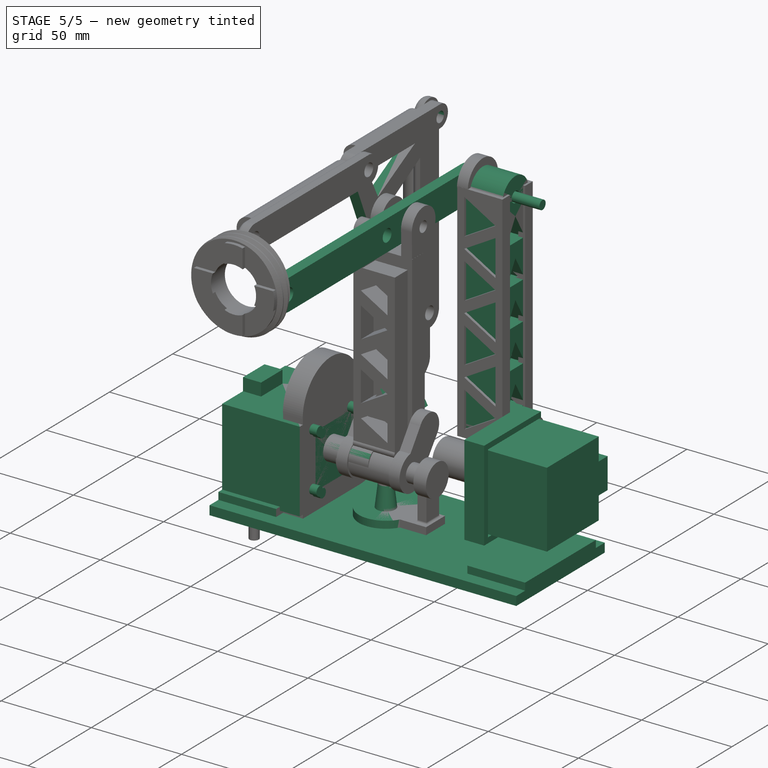
[diagram: stage 5 of 5 — iso view after this stage's code; geometry added in this stage tinted green]
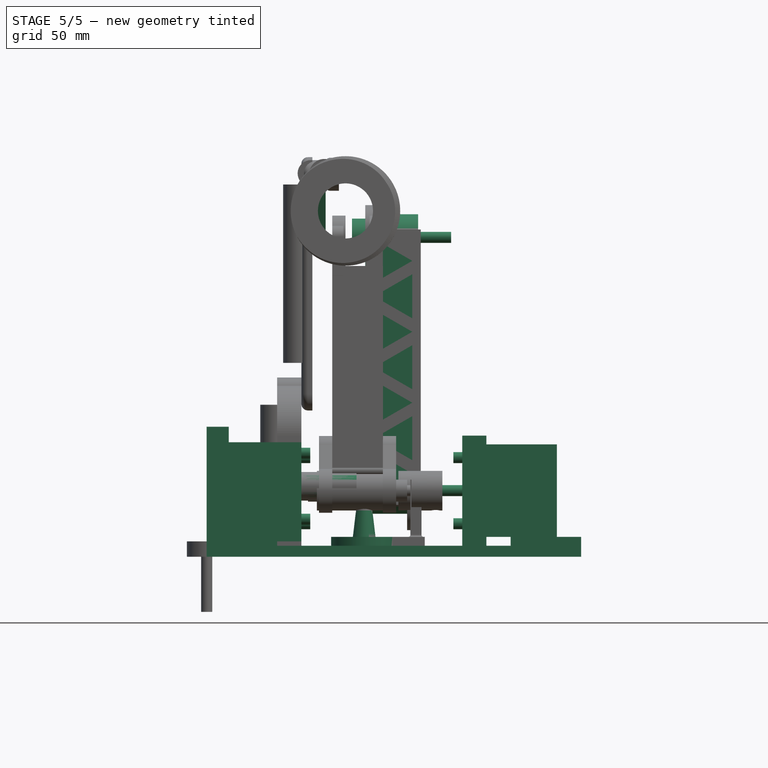
[diagram: stage 5 of 5 — front view after this stage's code; geometry added in this stage tinted green]
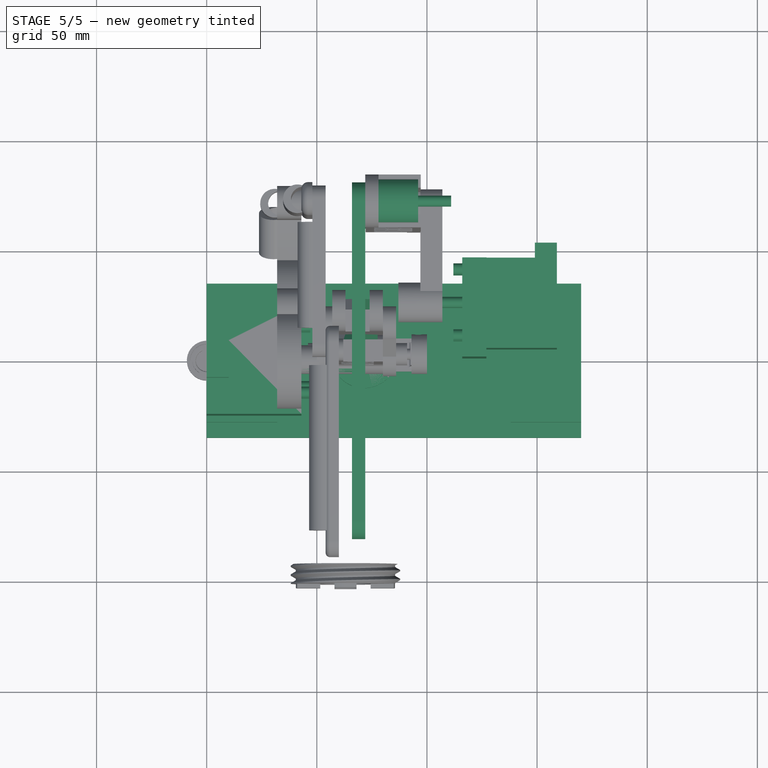
[diagram: stage 5 of 5 — top view after this stage's code; geometry added in this stage tinted green]
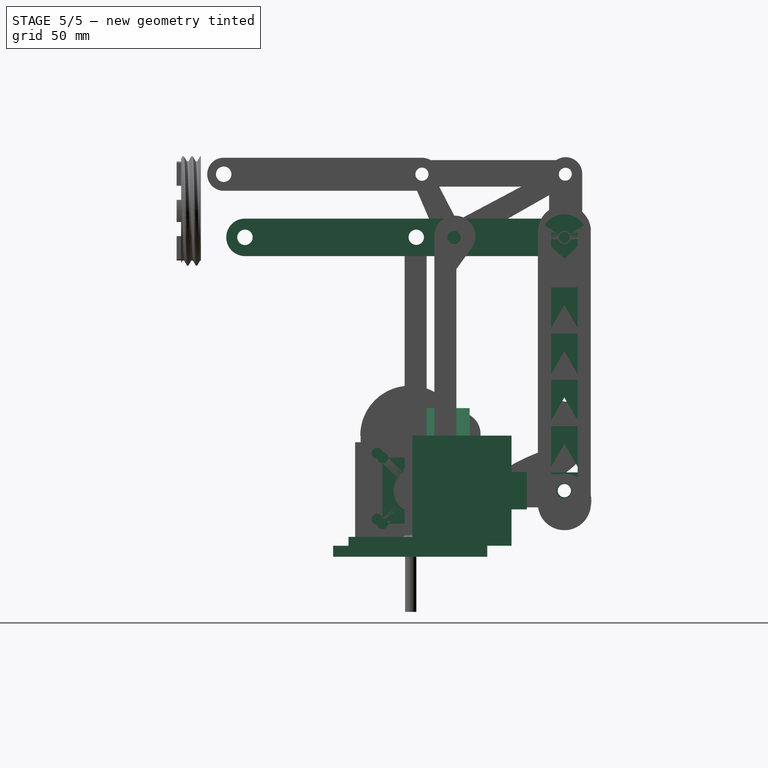
[diagram: stage 5 of 5 — right view after this stage's code; geometry added in this stage tinted green]
FEATURE [Part::Box] Box  label="Base Motor"
  AttacherType = Attacher::AttachEngine3D
  Height = 43
  Length = 45
  Width = 50
FEATURE [Part::Box] Box001  label="alimentacion"
  AttacherType = Attacher::AttachEngine3D
  Height = 10
  Length = 7
  Placement = pos=(45,16.5,0) rot=(0,0,1;0rad)
  Width = 17
FEATURE [Part::MultiFuse] Fusion  label="Carcasa motor"
  Refine = true
  Shapes = -> [Box001,Box]
FEATURE [Part::Cylinder] Cylinder  label="Rotor"
  Angle = 360
  AttacherType = Attacher::AttachEngine3D
  Height = 25
  Placement = pos=(25,25,43) rot=(0,0,1;0rad)
  Radius = 6.5
FEATURE [Part::Cylinder] Cylinder001  label="tonillo motor"
  Angle = 360
  AttacherType = Attacher::AttachEngine3D
  Height = 4
  Placement = pos=(10,10,43) rot=(0,0,1;0rad)
  Radius = 2.5
FEATURE [App::Link] Link  label="tonillo motor001"
  LinkPlacement = pos=(10,40,43) rot=(0,0,1;0rad)
  LinkedObject = -> Cylinder001
  Placement = pos=(10,40,43) rot=(0,0,1;0rad)
FEATURE [App::Link] Link001  label="tonillo motor002"
  LinkPlacement = pos=(40,10,43) rot=(0,0,1;0rad)
  LinkedObject = -> Cylinder001
  Placement = pos=(40,10,43) rot=(0,0,1;0rad)
FEATURE [App::Link] Link002  label="tonillo motor003"
  LinkPlacement = pos=(40,40,43) rot=(0,0,1;0rad)
  LinkedObject = -> Cylinder001
  Placement = pos=(40,40,43) rot=(0,0,1;0rad)
FEATURE [Part::MultiFuse] Fusion001  label="Motor"
  Placement = pos=(0,25,7) rot=(0.707107,0,0.707107;3.14159rad)
  Refine = true
  Shapes = -> [Link002,Link001,Link,Cylinder001,Cylinder,Fusion]
FEATURE [Part::Box] Box002  label="Plancha abajo"
  AttacherType = Attacher::AttachEngine3D
  Height = 5
  Length = 170
  Placement = pos=(0,-35,0) rot=(0,0,1;0rad)
  Width = 70
FEATURE [Part::Cylinder] Cylinder002  label="tonillo motor004"
  Angle = 360
  AttacherType = Attacher::AttachEngine3D
  Height = 4
  Placement = pos=(10,10,43) rot=(0,0,1;0rad)
  Radius = 2.5
FEATURE [Part::Box] Box003  label="Carcasa Motor"
  AttacherType = Attacher::AttachEngine3D
  Height = 3
  Length = 45
  Placement = pos=(0,0,40) rot=(0,0,1;0rad)
  Width = 50
FEATURE [Part::Box] Box004  label="alimentacion001"
  AttacherType = Attacher::AttachEngine3D
  Height = 10
  Length = 7
  Placement = pos=(45,16.5,0) rot=(0,0,1;0rad)
  Width = 17
FEATURE [Part::Cylinder] Cylinder003  label="Rotor001"
  Angle = 360
  AttacherType = Attacher::AttachEngine3D
  Height = 25
  Placement = pos=(25,25,43) rot=(0,0,1;0rad)
  Radius = 2.5
FEATURE [Part::Box] Box005  label="base motor"
  AttacherType = Attacher::AttachEngine3D
  Height = 40
  Length = 41
  Placement = pos=(4,4,0) rot=(0,0,1;0rad)
  Width = 42
FEATURE [App::Link] Link003  label="tonillo motor005"
  LinkPlacement = pos=(40,40,43) rot=(0,0,1;0rad)
  LinkedObject = -> Cylinder002
  Placement = pos=(40,40,43) rot=(0,0,1;0rad)
FEATURE [App::Link] Link004  label="tonillo motor006"
  LinkPlacement = pos=(40,10,43) rot=(0,0,1;0rad)
  LinkedObject = -> Cylinder002
  Placement = pos=(40,10,43) rot=(0,0,1;0rad)
FEATURE [App::Link] Link005  label="tonillo motor007"
  LinkPlacement = pos=(10,40,43) rot=(0,0,1;0rad)
  LinkedObject = -> Cylinder002
  Placement = pos=(10,40,43) rot=(0,0,1;0rad)
FEATURE [Part::MultiFuse] Fusion003  label="motor"
  Refine = true
  Shapes = -> [Cylinder003,Box005,Box004]
FEATURE [App::Link] Link006  label="lateral der"
  LinkPlacement = pos=(0,47,32) rot=(0,0,1;0rad)
  LinkedObject = -> Box006
  Placement = pos=(0,47,32) rot=(0,0,1;0rad)
FEATURE [Part::Box] Box006  label="lateral izq"
  AttacherType = Attacher::AttachEngine3D
  Height = 8
  Length = 45
  Placement = pos=(0,0,32) rot=(0,0,1;0rad)
  Width = 3
FEATURE [Part::Box] Box007  label="lateral frente"
  AttacherType = Attacher::AttachEngine3D
  Height = 8
  Length = 3
  Placement = pos=(0,0,32) rot=(0,0,1;0rad)
  Width = 50
FEATURE [Part::MultiFuse] Fusion004  label="Carcasa completa"
  Refine = true
  Shapes = -> [Box003,Box006,Link006,Box007]
FEATURE [Part::Box] Box008  label="alimentacion002"
  AttacherType = Attacher::AttachEngine3D
  Height = 10
  Length = 7
  Placement = pos=(45,16.5,0) rot=(0,0,1;0rad)
  Width = 17
FEATURE [Part::Box] Box009  label="base motor001"
  AttacherType = Attacher::AttachEngine3D
  Height = 40
  Length = 41
  Placement = pos=(4,4,0) rot=(0,0,1;0rad)
  Width = 42
FEATURE [Part::Cylinder] Cylinder004  label="Rotor002"
  Angle = 360
  AttacherType = Attacher::AttachEngine3D
  Height = 25
  Placement = pos=(25,25,43) rot=(0,0,1;0rad)
  Radius = 2.5
FEATURE [App::Link] Link007  label="tonillo motor008"
  LinkPlacement = pos=(10,40,43) rot=(0,0,1;0rad)
  LinkedObject = -> Cylinder005
  Placement = pos=(10,40,43) rot=(0,0,1;0rad)
FEATURE [Part::Box] Box010  label="Carcasa Motor001"
  AttacherType = Attacher::AttachEngine3D
  Height = 3
  Length = 45
  Placement = pos=(0,0,40) rot=(0,0,1;0rad)
  Width = 50
FEATURE [Part::Cylinder] Cylinder005  label="tonillo motor009"
  Angle = 360
  AttacherType = Attacher::AttachEngine3D
  Height = 4
  Placement = pos=(10,10,43) rot=(0,0,1;0rad)
  Radius = 2.5
FEATURE [Part::Box] Box011  label="lateral frente001"
  AttacherType = Attacher::AttachEngine3D
  Height = 8
  Length = 3
  Placement = pos=(0,0,32) rot=(0,0,1;0rad)
  Width = 50
FEATURE [Part::Box] Box012  label="lateral izq001"
  AttacherType = Attacher::AttachEngine3D
  Height = 8
  Length = 45
  Placement = pos=(0,0,32) rot=(0,0,1;0rad)
  Width = 3
FEATURE [Part::MultiFuse] Fusion007  label="motor001"
  Refine = true
  Shapes = -> [Cylinder004,Box009,Box008]
FEATURE [App::Link] Link008  label="lateral der001"
  LinkPlacement = pos=(0,47,32) rot=(0,0,1;0rad)
  LinkedObject = -> Box012
  Placement = pos=(0,47,32) rot=(0,0,1;0rad)
FEATURE [Part::MultiFuse] Fusion006  label="Carcasa completa001"
  Refine = true
  Shapes = -> [Box010,Box012,Link008,Box011]
FEATURE [App::Link] Link009  label="tonillo motor010"
  LinkPlacement = pos=(40,40,43) rot=(0,0,1;0rad)
  LinkedObject = -> Cylinder005
  Placement = pos=(40,40,43) rot=(0,0,1;0rad)
FEATURE [App::Link] Link010  label="tonillo motor011"
  LinkPlacement = pos=(40,10,43) rot=(0,0,1;0rad)
  LinkedObject = -> Cylinder005
  Placement = pos=(40,10,43) rot=(0,0,1;0rad)
FEATURE [Part::MultiFuse] Fusion005  label="Motor completo001"
  Placement = pos=(159,1,55) rot=(-0.57735,-0.57735,0.57735;2.0944rad)
  Refine = true
  Shapes = -> [Fusion006,Fusion007,Link009,Link010,Link007,Cylinder005]
FEATURE [Part::Box] Box013  label="soporte motor"
  AttacherType = Attacher::AttachEngine3D
  Height = 4
  Length = 32
  Placement = pos=(0,-28,5) rot=(0,0,1;0rad)
  Width = 56
FEATURE [App::Link] Link011  label="soporte motor001"
  LinkPlacement = pos=(138,-28,5) rot=(0,0,1;0rad)
  LinkedObject = -> Box013
  Placement = pos=(138,-28,5) rot=(0,0,1;0rad)
FEATURE [Part::MultiFuse] Fusion008  label="Base"
  Refine = true
  Shapes = -> [Link011,Box013,Box002]
FEATURE [Part::MultiFuse] Fusion002  label="Motor completo"
  Placement = pos=(0,-22.5,5) rot=(0.57735,0.57735,0.57735;2.0944rad)
  Refine = true
  Shapes = -> [Fusion004,Fusion003,Link003,Link004,Link005,Cylinder002]
FEATURE [Part::Cylinder] Cylinder014  label="Rotor004"
  Angle = 360
  AttacherType = Attacher::AttachEngine3D
  Height = 5
  Placement = pos=(25,25,49) rot=(0,0,1;0rad)
  Radius = 5
FEATURE [Part::Cylinder] Cylinder015  label="Rotor005"
  Angle = 360
  AttacherType = Attacher::AttachEngine3D
  Height = 25
  Placement = pos=(25,25,43) rot=(0,0,1;0rad)
  Radius = 2.5
FEATURE [Part::Cut] Cut009  label="E"
  Base = -> Cylinder014
  Placement = pos=(-1.02e-14,-22.5,55) rot=(0,1,0;1.5708rad)
  Refine = true
  Tool = -> Cylinder015
FEATURE [Part::Cylinder] Cylinder016  label="Rotor006"
  Angle = 360
  AttacherType = Attacher::AttachEngine3D
  Height = 5
  Placement = pos=(25,25,49) rot=(0,0,1;0rad)
  Radius = 5
FEATURE [Part::Cylinder] Cylinder017  label="Rotor007"
  Angle = 360
  AttacherType = Attacher::AttachEngine3D
  Height = 25
  Placement = pos=(25,25,43) rot=(0,0,1;0rad)
  Radius = 2.5
FEATURE [Part::Cut] Cut010  label="E001"
  Base = -> Cylinder016
  Placement = pos=(11,-22.5,55) rot=(0,1,0;1.5708rad)
  Refine = true
  Tool = -> Cylinder017
FEATURE [Part::Cone] Cone  label="Cono brazo central/base"
  Angle = 360
  AttacherType = Attacher::AttachEngine3D
  Height = 21
  Placement = pos=(71.5,2.5,27) rot=(1,0,0;3.14159rad)
  Radius1 = 3
  Radius2 = 5.5
FEATURE [Part::Cylinder] Cylinder022  label="Base de la union"
  Angle = 360
  AttacherType = Attacher::AttachEngine3D
  Height = 4
  Placement = pos=(71.5,2.5,5) rot=(0,0,1;0rad)
  Radius = 15
FEATURE [Part::MultiFuse] Fusion015  label="Union base/brazo central"
  Refine = true
  Shapes = -> [Cylinder022,Cone]
FEATURE [Sketcher::SketchObject] Sketch003
  FullyConstrained = false
  Placement = pos=(0,0,0) rot=(0.57735,-0.57735,-0.57735;2.0944rad)
  sketch-geometry (15):
    g0: ArcOfCircle CenterX=0 CenterY=0 CenterZ=0 NormalX=0 NormalY=0 NormalZ=1 AngleXU=0 Radius=4.5 StartAngle=1.57136 EndAngle=3.99109
    g1: ArcOfCircle CenterX=45 CenterY=0.0254873 CenterZ=0 NormalX=0 NormalY=0 NormalZ=1 AngleXU=0 Radius=4.5 StartAngle=0.492749 EndAngle=1.57136
    g2: LineSegment StartX=11.9394 StartY=-4.50214 StartZ=0 EndX=37.1294 EndY=-4.50214 EndZ=0
    g3: LineSegment StartX=-0.00254873 StartY=4.5 StartZ=0 EndX=44.9975 EndY=4.52549 EndZ=0
    g4: Circle CenterX=0 CenterY=0 CenterZ=0 NormalX=0 NormalY=0 NormalZ=1 AngleXU=0 Radius=2.5
    g5: Circle CenterX=45 CenterY=0.0254873 CenterZ=0 NormalX=0 NormalY=0 NormalZ=1 AngleXU=0 Radius=2.5
    g6: ArcOfCircle CenterX=44.6762 CenterY=-0.46772 CenterZ=0 NormalX=0 NormalY=0 NormalZ=1 AngleXU=0 Radius=5.02647 StartAngle=5.8012 EndAngle=6.83194
    g7: ArcOfCircle CenterX=30.77 CenterY=-27.05 CenterZ=0 NormalX=0 NormalY=0 NormalZ=1 AngleXU=0 Radius=5.02647 StartAngle=4.00368 EndAngle=5.8012
    g8: LineSegment StartX=37.1294 StartY=-4.50214 StartZ=0 EndX=29.0891 EndY=-19.5792 EndZ=0
    g9: LineSegment StartX=49.13 StartY=-2.79769 StartZ=0 EndX=35.2238 EndY=-29.38 EndZ=0
    g10: ArcOfCircle CenterX=0 CenterY=0 CenterZ=0 NormalX=0 NormalY=0 NormalZ=1 AngleXU=0 Radius=4.5 StartAngle=1.5708 EndAngle=3.97843
    g11: ArcOfCircle CenterX=30.5127 CenterY=-27.5248 CenterZ=0 NormalX=0 NormalY=0 NormalZ=1 AngleXU=0 Radius=4.5 StartAngle=3.97843 EndAngle=4.453
    g12: LineSegment StartX=-3.01417 StartY=-3.34137 StartZ=0 EndX=27.4985 EndY=-30.8661 EndZ=0
    g13: LineSegment StartX=11.9394 StartY=-4.50214 StartZ=0 EndX=29.0891 EndY=-19.5792 EndZ=0
    g14: Circle CenterX=30.77 CenterY=-27.05 CenterZ=0 NormalX=0 NormalY=0 NormalZ=1 AngleXU=0 Radius=2.5
  constraints (39):
    c: Tangent(g0,g3) = 1.5708
    c: Tangent(g3,g1) = 1.5708
    c: Horizontal(g2)
    c: Equal(g0,g1)
    c: Coincident(g0,g-1)
    c: DistanceX(g3,g3) = 45
    c: Coincident(g4,g0)
    c: Radius(g4) = 2.5
    c: Coincident(g5,g1)
    c: Radius(g5) = 2.5
    c: Tangent(g6,g9) = 1.5708
    c: Tangent(g9,g7) = 1.5708
    c: Equal(g6,g7)
    c: Distance(g9) = 30
    c: Distance(g6,g1) = 0.59
    c: DistanceX(g-1,g7) = 30.77
    c: DistanceY(g7,g-1) = 27.05
    c: Tangent(g10,g12) = -1.5708
    c: Tangent(g12,g11) = -1.5708
    c: Equal(g10,g11)
    c: Coincident(g10,g0)
    c: Radius(g14) = 2.5
    c: Radius(g10) = 4.5
    c: Coincident(g2,g8)
    c: Coincident(g1,g6)
    c: Angle(g2,g8) = 1.08088
    c: PointOnObject(g0,g10)
    c: Coincident(g2,g13)
    c: Angle(g13,g2) = 0.72117
    c: DistanceX(g2,g2) = 25.19
    c: Angle(g1) = 1.07861
    c: Angle(g0) = 2.41972
    c: Coincident(g8,g13)
    c: Distance(g2,g1) = 9.08
    c: Distance(g2,g0) = 12.76
    c: Distance(g7,g11) = 0.54
    c: Coincident(g11,g7)
    c: Angle(g7) = 1.79751
    c: PointOnObject(g11,g7)
FEATURE [Sketcher::SketchObject] Sketch004  label="sk arriba triangulo"
  FullyConstrained = false
  Placement = pos=(0,0,0) rot=(0.57735,-0.57735,-0.57735;2.0944rad)
  sketch-geometry (6):
    g0: ArcOfCircle CenterX=-12.7694 CenterY=-0.115118 CenterZ=0 NormalX=0 NormalY=0 NormalZ=1 AngleXU=0 Radius=5.00001 StartAngle=1.56842 EndAngle=4.71239
    g1: ArcOfCircle CenterX=52.2308 CenterY=-0.192462 CenterZ=0 NormalX=0 NormalY=0 NormalZ=1 AngleXU=0 Radius=4.92266 StartAngle=4.71239 EndAngle=7.8516
    g2: LineSegment StartX=-12.7694 StartY=-5.11512 StartZ=0 EndX=52.2308 EndY=-5.11512 EndZ=0
    g3: LineSegment StartX=-12.7575 StartY=4.88488 StartZ=0 EndX=52.2425 EndY=4.73019 EndZ=0
    g4: Circle CenterX=-12.7694 CenterY=-0.115118 CenterZ=0 NormalX=0 NormalY=0 NormalZ=1 AngleXU=0 Radius=3
    g5: Circle CenterX=52.2308 CenterY=-0.192462 CenterZ=0 NormalX=0 NormalY=0 NormalZ=1 AngleXU=0 Radius=3
  constraints (11):
    c: Tangent(g0,g3) = 1.5708
    c: Tangent(g0,g2) = -1.5708
    c: Tangent(g2,g1) = -1.5708
    c: Tangent(g3,g1) = 1.5708
    c: Horizontal(g2)
    c: DistanceX(g3,g3) = 65
    c: DistanceY(g0,g0) = 10
    c: Coincident(g4,g0)
    c: Coincident(g5,g1)
    c: Radius(g4) = 3
    c: Radius(g5) = 3
FEATURE [Sketcher::SketchObject] Sketch005  label="sk der triangulo"
  FullyConstrained = false
  Placement = pos=(0,0,0) rot=(0.57735,-0.57735,-0.57735;2.0944rad)
  sketch-geometry (6):
    g0: ArcOfCircle CenterX=52.2825 CenterY=-0.172207 CenterZ=0 NormalX=0 NormalY=0 NormalZ=1 AngleXU=0 Radius=5 StartAngle=5.87755 EndAngle=9.01914
    g1: ArcOfCircle CenterX=40.3261 CenterY=-28.0134 CenterZ=0 NormalX=0 NormalY=0 NormalZ=1 AngleXU=0 Radius=5 StartAngle=2.73596 EndAngle=5.87755
    g2: LineSegment StartX=47.6883 StartY=1.8008 StartZ=0 EndX=35.7319 EndY=-26.0404 EndZ=0
    g3: LineSegment StartX=56.8768 StartY=-2.14521 StartZ=0 EndX=44.9204 EndY=-29.9864 EndZ=0
    g4: Circle CenterX=40.3261 CenterY=-28.0134 CenterZ=0 NormalX=0 NormalY=0 NormalZ=1 AngleXU=0 Radius=3
    g5: Circle CenterX=52.2825 CenterY=-0.172207 CenterZ=0 NormalX=0 NormalY=0 NormalZ=1 AngleXU=0 Radius=3
  constraints (11):
    c: Tangent(g0,g3) = 1.5708
    c: Tangent(g0,g2) = -1.5708
    c: Tangent(g2,g1) = -1.5708
    c: Tangent(g3,g1) = 1.5708
    c: Equal(g0,g1)
    c: Distance(g3) = 30.3
    c: Distance(g1,g1) = 10
    c: Coincident(g4,g1)
    c: Coincident(g5,g0)
    c: Radius(g4) = 3
    c: Radius(g5) = 3
FEATURE [Sketcher::SketchObject] Sketch006  label="sk izq triangulo"
  FullyConstrained = false
  Placement = pos=(0,0,0) rot=(0.57735,-0.57735,-0.57735;2.0944rad)
  sketch-geometry (6):
    g0: ArcOfCircle CenterX=-12.9125 CenterY=-0.273875 CenterZ=0 NormalX=0 NormalY=0 NormalZ=1 AngleXU=0 Radius=4.5 StartAngle=1.08303 EndAngle=4.22463
    g1: ArcOfCircle CenterX=40.0905 CenterY=-28.3929 CenterZ=0 NormalX=0 NormalY=0 NormalZ=1 AngleXU=0 Radius=4.5 StartAngle=4.22463 EndAngle=7.36622
    g2: LineSegment StartX=-15.0215 StartY=-4.2491 StartZ=0 EndX=37.9815 EndY=-32.3682 EndZ=0
    g3: LineSegment StartX=-10.8036 StartY=3.70135 StartZ=0 EndX=42.1994 EndY=-24.4177 EndZ=0
    g4: Circle CenterX=-12.9125 CenterY=-0.273875 CenterZ=0 NormalX=0 NormalY=0 NormalZ=1 AngleXU=0 Radius=3
    g5: Circle CenterX=40.0905 CenterY=-28.3929 CenterZ=0 NormalX=0 NormalY=0 NormalZ=1 AngleXU=0 Radius=3
  constraints (11):
    c: Tangent(g0,g3) = 1.5708
    c: Tangent(g0,g2) = -1.5708
    c: Tangent(g2,g1) = -1.5708
    c: Tangent(g3,g1) = 1.5708
    c: Equal(g0,g1)
    c: Distance(g2) = 60
    c: Distance(g0,g0) = 9
    c: Radius(g5) = 3
    c: Radius(g4) = 3
    c: Coincident(g4,g0)
    c: Coincident(g5,g1)
FEATURE [Part::Extrusion] Extrude003  label="arriba"
  Base = -> Sketch004
  Dir = (-1,0,0)
  DirMode = 2
  FaceMakerClass = Part::FaceMakerBullseye
  LengthFwd = 6
  LengthRev = 0
  Solid = true
  Symmetric = false
FEATURE [Part::Extrusion] Extrude004  label="Der"
  Base = -> Sketch006
  Dir = (-1,0,0)
  DirMode = 2
  FaceMakerClass = Part::FaceMakerBullseye
  LengthFwd = 6
  LengthRev = 0
  Solid = true
  Symmetric = false
FEATURE [Part::Extrusion] Extrude005  label="izq"
  Base = -> Sketch005
  Dir = (-1,0,0)
  DirMode = 2
  FaceMakerClass = Part::FaceMakerBullseye
  LengthFwd = 6
  LengthRev = 0
  Solid = true
  Symmetric = false
FEATURE [Part::MultiFuse] Fusion018  label="Triangulo"
  Placement = pos=(54,57.6,173.85) rot=(0,0,1;0rad)
  Refine = true
  Shapes = -> [Extrude005,Extrude004,Extrude003]
FEATURE [Part::Box] Box025  label="main brazo central"
  AttacherType = Attacher::AttachEngine3D
  Height = 80
  Length = 23
  Placement = pos=(57,11,52) rot=(0,0,1;0rad)
  Width = 10
FEATURE [Sketcher::SketchObject] Sketch007  label="sk Palito1  codo"
  FullyConstrained = false
  Placement = pos=(0,0,0) rot=(0.57735,-0.57735,-0.57735;2.0944rad)
  sketch-geometry (5):
    g0: ArcOfCircle CenterX=-69.87 CenterY=29.9295 CenterZ=0 NormalX=0 NormalY=0 NormalZ=1 AngleXU=0 Radius=7.49373 StartAngle=1.57101 EndAngle=4.71248
    g1: Circle CenterX=-69.87 CenterY=29.9295 CenterZ=0 NormalX=0 NormalY=0 NormalZ=1 AngleXU=0 Radius=3.5
    g2: ArcOfCircle CenterX=-25.9536 CenterY=29.9303 CenterZ=0 NormalX=0 NormalY=0 NormalZ=1 AngleXU=0 Radius=8.93 StartAngle=2.146 EndAngle=4.13749
    g3: LineSegment StartX=-69.8716 StartY=37.4233 StartZ=0 EndX=-30.8116 EndY=37.4233 EndZ=0
    g4: LineSegment StartX=-69.8693 StartY=22.4358 StartZ=0 EndX=-30.8093 EndY=22.4358 EndZ=0
  constraints (11):
    c: Radius(g1) = 3.5
    c: Coincident(g1,g0)
    c: Coincident(g3,g0)
    c: Coincident(g3,g2)
    c: Horizontal(g3)
    c: Coincident(g4,g0)
    c: Coincident(g4,g2)
    c: Horizontal(g4)
    c: Equal(g3,g4)
    c: DistanceX(g3,g3) = 39.06
    c: Radius(g2) = 8.93
FEATURE [Sketcher::SketchObject] Sketch008  label="sk Palito 2 codo"
  FullyConstrained = false
  Placement = pos=(0,0,0) rot=(0.57735,-0.57735,-0.57735;2.0944rad)
  sketch-geometry (21):
    g0: ArcOfCircle CenterX=0 CenterY=0 CenterZ=0 NormalX=0 NormalY=0 NormalZ=1 AngleXU=0 Radius=10.5 StartAngle=3.14159 EndAngle=6.28319
    g1: ArcOfCircle CenterX=-7e-16 CenterY=115 CenterZ=0 NormalX=0 NormalY=0 NormalZ=1 AngleXU=0 Radius=10.5 StartAngle=0 EndAngle=3.14159
    g2: LineSegment StartX=10.5 StartY=-2.6e-15 StartZ=0 EndX=10.5 EndY=115 EndZ=0
    g3: LineSegment StartX=-10.5 StartY=-3.4e-15 StartZ=0 EndX=-10.5 EndY=115 EndZ=0
    g4: Circle CenterX=0 CenterY=0 CenterZ=0 NormalX=0 NormalY=0 NormalZ=1 AngleXU=0 Radius=3
    g5: Circle CenterX=-7e-16 CenterY=115 CenterZ=0 NormalX=0 NormalY=0 NormalZ=1 AngleXU=0 Radius=3
    g6: LineSegment StartX=0 StartY=21.3151 StartZ=0 EndX=-7.5 EndY=8.3247 EndZ=0
    g7: LineSegment StartX=-7.5 StartY=8.3247 StartZ=0 EndX=7.5 EndY=8.3247 EndZ=0
    g8: LineSegment StartX=0 StartY=21.3151 StartZ=0 EndX=7.5 EndY=8.3247 EndZ=0
    g9: LineSegment StartX=0 StartY=42.3055 StartZ=0 EndX=-7.5 EndY=29.3151 EndZ=0
    g10: LineSegment StartX=-7.5 StartY=29.3151 StartZ=0 EndX=7.5 EndY=29.3151 EndZ=0
    g11: LineSegment StartX=0 StartY=42.3055 StartZ=0 EndX=7.5 EndY=29.3151 EndZ=0
    g12: LineSegment StartX=0 StartY=63.2958 StartZ=0 EndX=-7.5 EndY=50.3055 EndZ=0
    g13: LineSegment StartX=-7.5 StartY=50.3055 StartZ=0 EndX=7.5 EndY=50.3055 EndZ=0
    g14: LineSegment StartX=0 StartY=63.2958 StartZ=0 EndX=7.5 EndY=50.3055 EndZ=0
    g15: LineSegment StartX=0 StartY=84.2862 StartZ=0 EndX=-7.5 EndY=71.2958 EndZ=0
    g16: LineSegment StartX=-7.5 StartY=71.2958 StartZ=0 EndX=7.5 EndY=71.2958 EndZ=0
    g17: LineSegment StartX=0 StartY=84.2862 StartZ=0 EndX=7.5 EndY=71.2958 EndZ=0
    g18: LineSegment StartX=0 StartY=105.277 StartZ=0 EndX=-7.5 EndY=92.2862 EndZ=0
    g19: LineSegment StartX=-7.5 StartY=92.2862 StartZ=0 EndX=7.5 EndY=92.2862 EndZ=0
    g20: LineSegment StartX=7.5 StartY=92.2862 StartZ=0 EndX=0 EndY=105.277 EndZ=0
  constraints (58):
    c: Tangent(g0,g3) = 1.5708
    c: Tangent(g0,g2) = -1.5708
    c: Tangent(g2,g1) = -1.5708
    c: Tangent(g3,g1) = 1.5708
    c: Vertical(g2)
    c: Equal(g0,g1)
    c: Coincident(g0,g-1)
    c: DistanceY(g2,g2) = 115
    c: Coincident(g4,g0)
    c: Coincident(g5,g1)
    c: Radius(g4) = 3
    c: Radius(g5) = 3
    c: PointOnObject(g6,g-2)
    c: Coincident(g7,g6)
    c: Horizontal(g7)
    c: Coincident(g8,g6)
    c: Coincident(g8,g7)
    c: Angle(g6,g8) = 1.0472
    c: Angle(g7,g6) = 1.0472
    c: DistanceX(g7,g7) = 15
    c: Distance(g6,g3) = 3
    c: PointOnObject(g9,g-2)
    c: Coincident(g10,g9)
    c: Horizontal(g10)
    c: Coincident(g11,g9)
    c: Coincident(g11,g10)
    c: DistanceX(g10,g10) = 15
    c: Angle(g10,g9) = 1.0472
    c: Angle(g9,g11) = 1.0472
    c: Distance(g6,g10) = 8
    c: PointOnObject(g12,g-2)
    c: Coincident(g13,g12)
    c: Horizontal(g13)
    c: PointOnObject(g14,g-2)
    c: Coincident(g14,g13)
    c: DistanceX(g13,g13) = 15
    c: Angle(g13,g12) = 1.0472
    c: Angle(g12,g14) = 1.0472
    c: Distance(g12,g3) = 3
    c: Distance(g9,g13) = 8
    c: PointOnObject(g15,g-2)
    c: Coincident(g16,g15)
    c: Horizontal(g16)
    c: Coincident(g17,g15)
    c: Coincident(g17,g16)
    c: DistanceX(g16,g16) = 15
    c: Angle(g15,g17) = 1.0472
    c: Angle(g16,g15) = 1.0472
    c: Distance(g12,g16) = 8
    c: PointOnObject(g18,g-2)
    c: Coincident(g19,g18)
    c: Horizontal(g19)
    c: Coincident(g20,g19)
    c: DistanceX(g19,g19) = 15
    c: Angle(g18,g20) = 1.0472
    c: Angle(g19,g18) = 1.0472
    c: Distance(g15,g19) = 8
    c: Coincident(g20,g18)
FEATURE [Part::Extrusion] Extrude007  label="Palito 2 codo"
  Base = -> Sketch008
  Dir = (-1,0,0)
  DirMode = 2
  FaceMakerClass = Part::FaceMakerBullseye
  LengthFwd = 24
  LengthRev = 0
  Placement = pos=(96,70,30) rot=(0,0,1;0rad)
  Solid = true
  Symmetric = false
FEATURE [Sketcher::SketchObject] Sketch009  label="sk Palito 3 codo"
  FullyConstrained = true
  Placement = pos=(0,0,0) rot=(0.57735,-0.57735,-0.57735;2.0944rad)
  sketch-geometry (7):
    g0: ArcOfCircle CenterX=0 CenterY=0 CenterZ=0 NormalX=0 NormalY=0 NormalZ=1 AngleXU=0 Radius=8.5 StartAngle=1.5708 EndAngle=4.71239
    g1: ArcOfCircle CenterX=145 CenterY=-3.6e-14 CenterZ=0 NormalX=0 NormalY=0 NormalZ=1 AngleXU=0 Radius=8.5 StartAngle=4.71239 EndAngle=7.85398
    g2: LineSegment StartX=-1.6e-15 StartY=-8.5 StartZ=0 EndX=145 EndY=-8.5 EndZ=0
    g3: LineSegment StartX=3.1e-15 StartY=8.5 StartZ=0 EndX=145 EndY=8.5 EndZ=0
    g4: Circle CenterX=0 CenterY=0 CenterZ=0 NormalX=0 NormalY=0 NormalZ=1 AngleXU=0 Radius=3.5
    g5: Circle CenterX=145 CenterY=-3.6e-14 CenterZ=0 NormalX=0 NormalY=0 NormalZ=1 AngleXU=0 Radius=3.5
    g6: Circle CenterX=67.25 CenterY=0 CenterZ=0 NormalX=0 NormalY=0 NormalZ=1 AngleXU=0 Radius=3.5
  constraints (16):
    c: Tangent(g0,g3) = 1.5708
    c: Tangent(g0,g2) = -1.5708
    c: Tangent(g2,g1) = -1.5708
    c: Tangent(g3,g1) = 1.5708
    c: Horizontal(g2)
    c: Equal(g0,g1)
    c: Coincident(g0,g-1)
    c: DistanceX(g3,g3) = 145
    c: Coincident(g4,g0)
    c: Coincident(g5,g1)
    c: Radius(g4) = 3.5
    c: Radius(g5) = 3.5
    c: DistanceY(g1,g1) = 17
    c: PointOnObject(g6,g-1)
    c: Radius(g6) = 3.5
    c: DistanceX(g0,g6) = 67.25
FEATURE [Part::Extrusion] Extrude008  label="Pieza 3 codo"
  Base = -> Sketch009
  Dir = (-1,0,0)
  DirMode = 2
  FaceMakerClass = Part::FaceMakerBullseye
  LengthFwd = 6
  LengthRev = 0
  Placement = pos=(72,70,145) rot=(0,0,1;0rad)
  Solid = true
  Symmetric = false
FEATURE [Sketcher::SketchObject] Sketch014  label="sk union brazo central"
  FullyConstrained = false
  Placement = pos=(0,0,0) rot=(0.57735,-0.57735,-0.57735;2.0944rad)
  sketch-geometry (5):
    g0: ArcOfCircle CenterX=-20.211 CenterY=145.481 CenterZ=0 NormalX=0 NormalY=0 NormalZ=1 AngleXU=0 Radius=9.31058 StartAngle=6.27538 EndAngle=10.0465
    g1: LineSegment StartX=-27.7793 StartY=140.058 StartZ=0 EndX=-20.0269 EndY=129.238 EndZ=0
    g2: LineSegment StartX=-10.9007 StartY=145.408 StartZ=0 EndX=-11.0269 EndY=129.238 EndZ=0
    g3: LineSegment StartX=-20.0269 StartY=129.238 StartZ=0 EndX=-11.0269 EndY=129.238 EndZ=0
    g4: Circle CenterX=-19.958 CenterY=144.959 CenterZ=0 NormalX=0 NormalY=0 NormalZ=1 AngleXU=0 Radius=3
  constraints (12):
    c: Tangent(g0,g2) = 1.5708
    c: Tangent(g0,g1) = -1.5708
    c: Coincident(g3,g1)
    c: Coincident(g3,g2)
    c: Horizontal(g3)
    c: Radius(g4) = 3
    c: Distance(g4,g0) = 0.58
    c: Angle(g0) = 3.77113
    c: Distance(g4,g0) = 9.23
    c: DistanceX(g3,g3) = 9
    c: Distance(g2) = 16.17
    c: Distance(g1) = 13.31
FEATURE [Part::Extrusion] Extrude013  label="Union brazo central"
  Base = -> Sketch014
  Dir = (-1,0,0)
  DirMode = 2
  FaceMakerClass = Part::FaceMakerBullseye
  LengthFwd = 6
  LengthRev = 0
  Placement = pos=(63,0,0) rot=(0,0,1;0rad)
  Solid = true
  Symmetric = false
FEATURE [App::Link] Link017  label="Union brazo central001"
  LinkPlacement = pos=(80,0,0) rot=(0,0,1;0rad)
  LinkedObject = -> Extrude013
  Placement = pos=(80,0,0) rot=(0,0,1;0rad)
FEATURE [Part::Cylinder] Cylinder025  label="union palito 2 y 3"
  Angle = 360
  AttacherType = Attacher::AttachEngine3D
  Height = 45
  Placement = pos=(111,70,145) rot=(0,-1,0;1.5708rad)
  Radius = 2.5
FEATURE [Part::MultiFuse] Fusion021  label="Brazo central"
  Refine = true
  Shapes = -> [Link017,Extrude013,Box025]
FEATURE [Sketcher::SketchObject] Sketch015  label="sk huecos triangulares"
  FullyConstrained = false
  Placement = pos=(0,0,0) rot=(1,0,0;1.5708rad)
  sketch-geometry (3):
    g0: LineSegment StartX=68.6673 StartY=67.4604 StartZ=0 EndX=59.7223 EndY=51.9672 EndZ=0
    g1: LineSegment StartX=59.7223 StartY=51.9672 StartZ=0 EndX=77.6123 EndY=51.9672 EndZ=0
    g2: LineSegment StartX=68.6673 StartY=67.4604 StartZ=0 EndX=77.6123 EndY=51.9672 EndZ=0
  constraints (7):
    c: Coincident(g1,g0)
    c: Horizontal(g1)
    c: Coincident(g2,g0)
    c: Coincident(g2,g1)
    c: Angle(g1,g0) = 1.0472
    c: Angle(g0,g2) = 1.0472
    c: Distance(g2) = 17.89
FEATURE [Part::Extrusion] Extrude014  label="Huecos triangulares"
  Base = -> Sketch015
  Dir = (0,-1,3e-16)
  DirMode = 2
  FaceMakerClass = Part::FaceMakerBullseye
  LengthFwd = 25
  LengthRev = 0
  Placement = pos=(0,27,0) rot=(0,0,1;0rad)
  Solid = true
  Symmetric = false
FEATURE [App::Link] Link018  label="Union brazo central003"
  LinkPlacement = pos=(80,-9.53674e-06,0) rot=(0,0,1;0rad)
  LinkedObject = -> Extrude016
  Placement = pos=(80,-9.53674e-06,0) rot=(0,0,1;0rad)
FEATURE [Part::MultiFuse] Fusion022  label="Brazo central v2"
  Refine = true
  Shapes = -> [Link018,Extrude016,Extrude015,Fusion014]
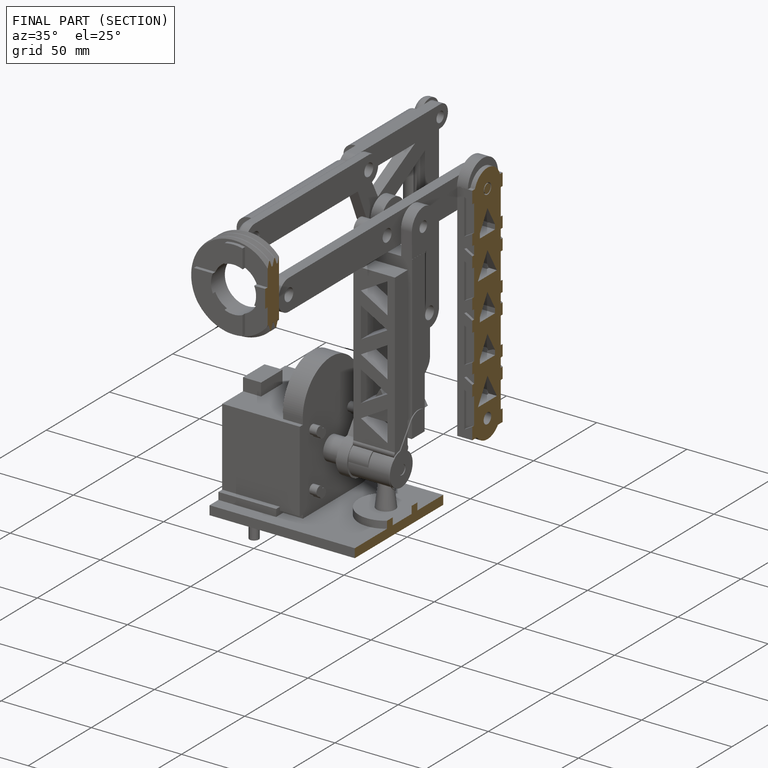
[diagram: finished part — half-section view (interior)]
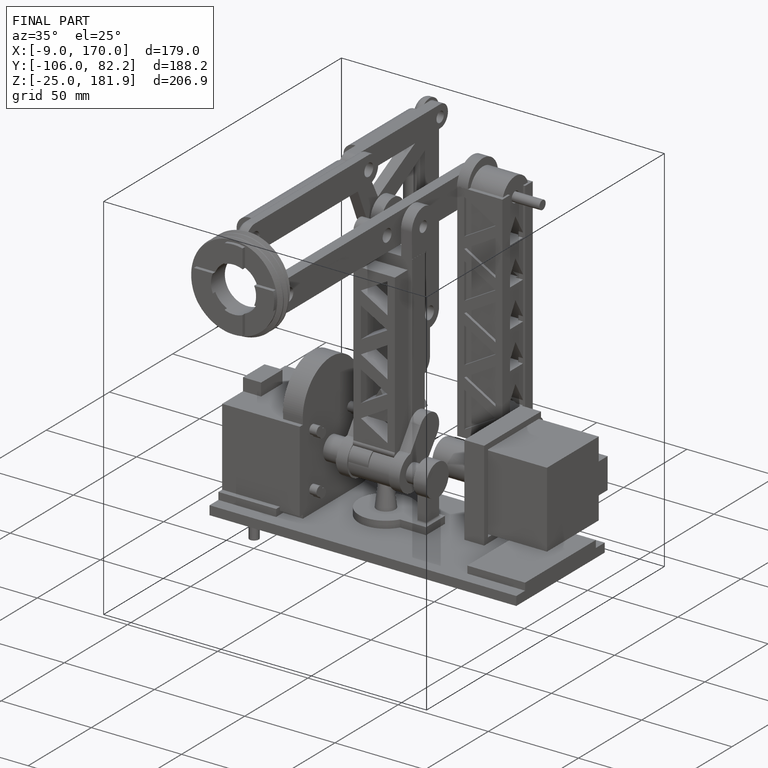
[diagram: finished part — iso view with bounding-box wireframe]
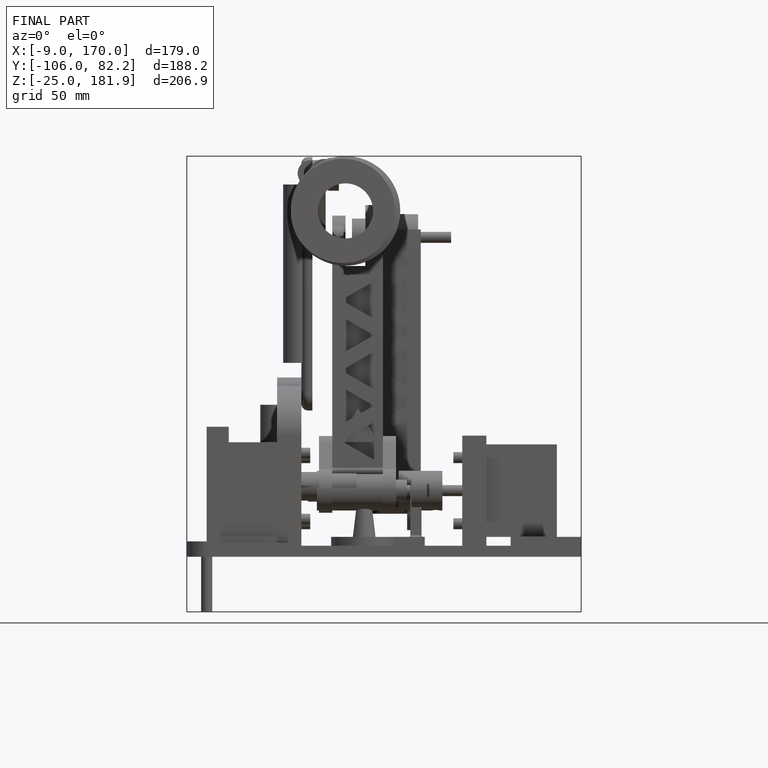
[diagram: finished part — front view with bounding-box wireframe]
